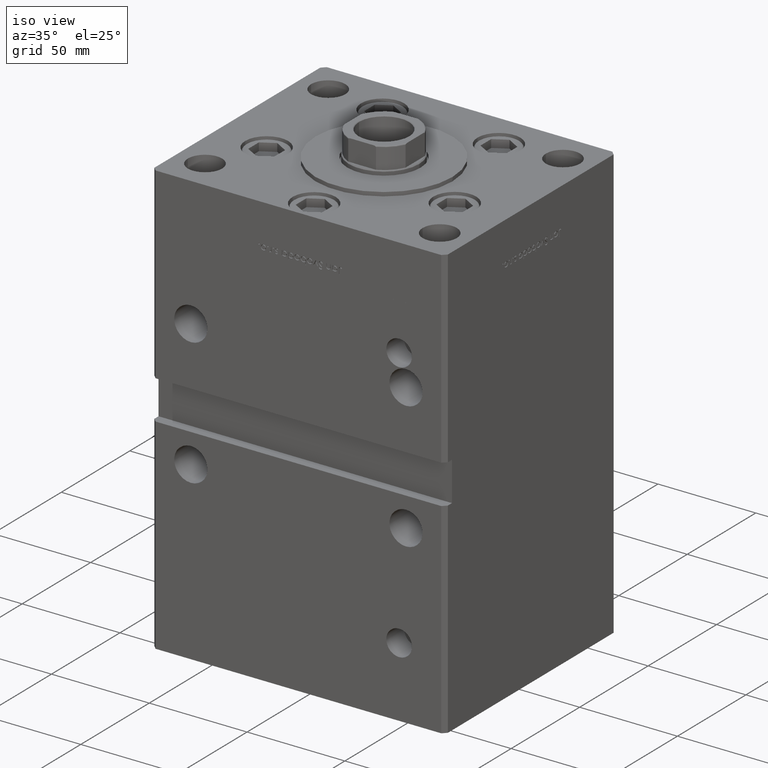
[diagram: clean part render]
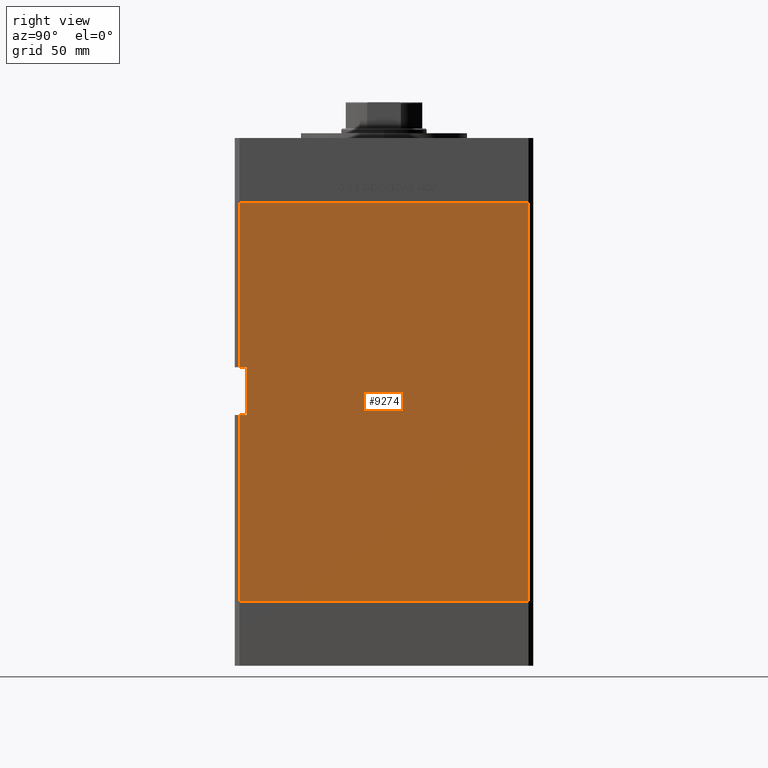
[diagram: tour spotlight — one face highlighted and labeled with its STEP entity id]
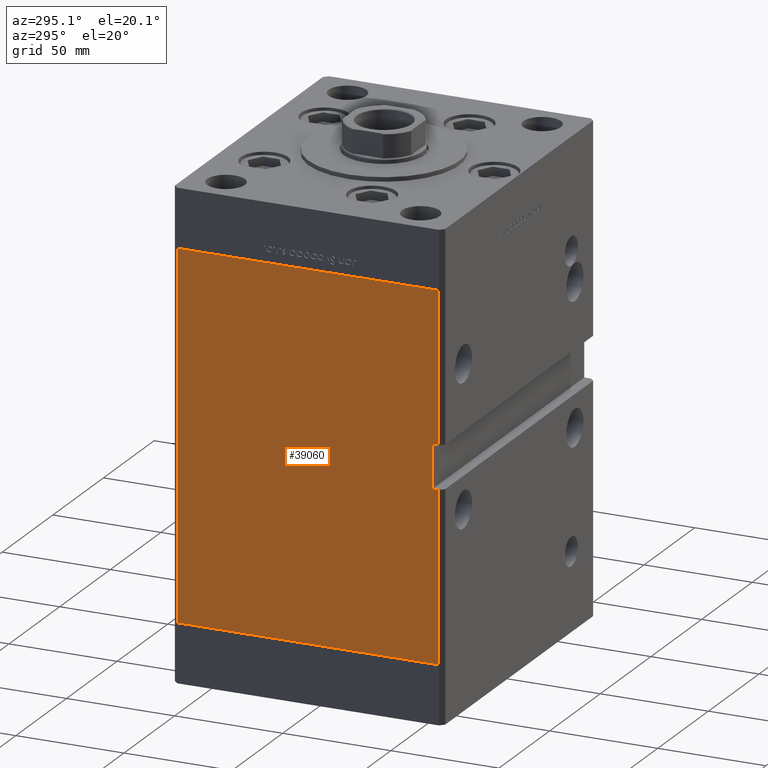
[diagram: tour spotlight — one face highlighted and labeled with its STEP entity id]
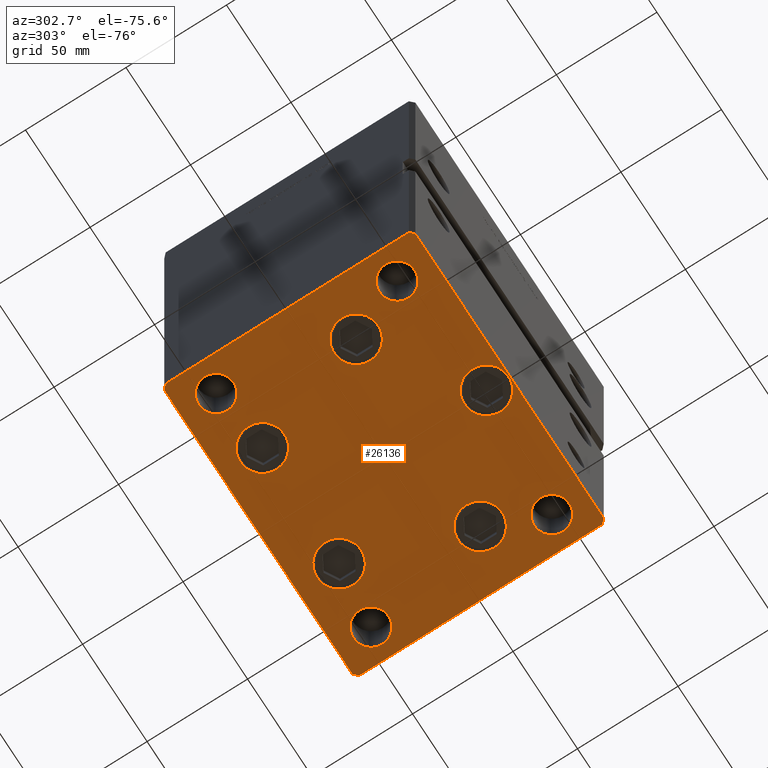
[diagram: tour spotlight — one face highlighted and labeled with its STEP entity id]
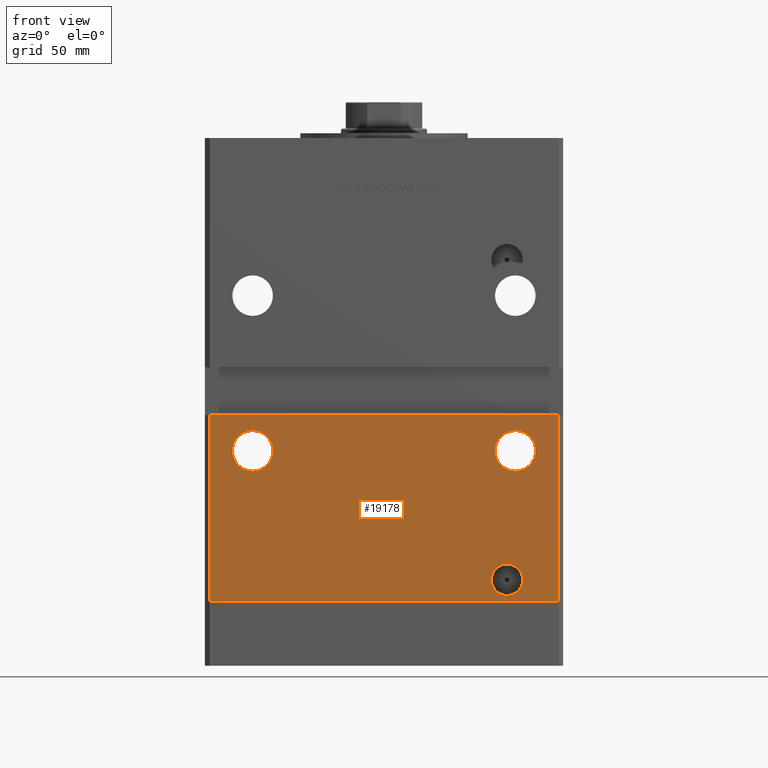
[diagram: tour spotlight — one face highlighted and labeled with its STEP entity id]
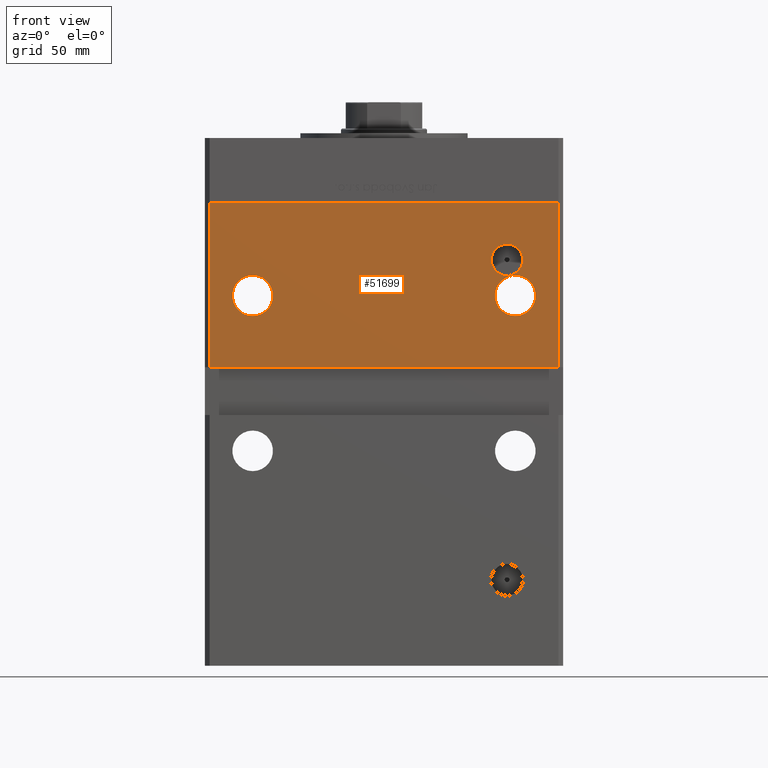
[diagram: tour spotlight — one face highlighted and labeled with its STEP entity id]
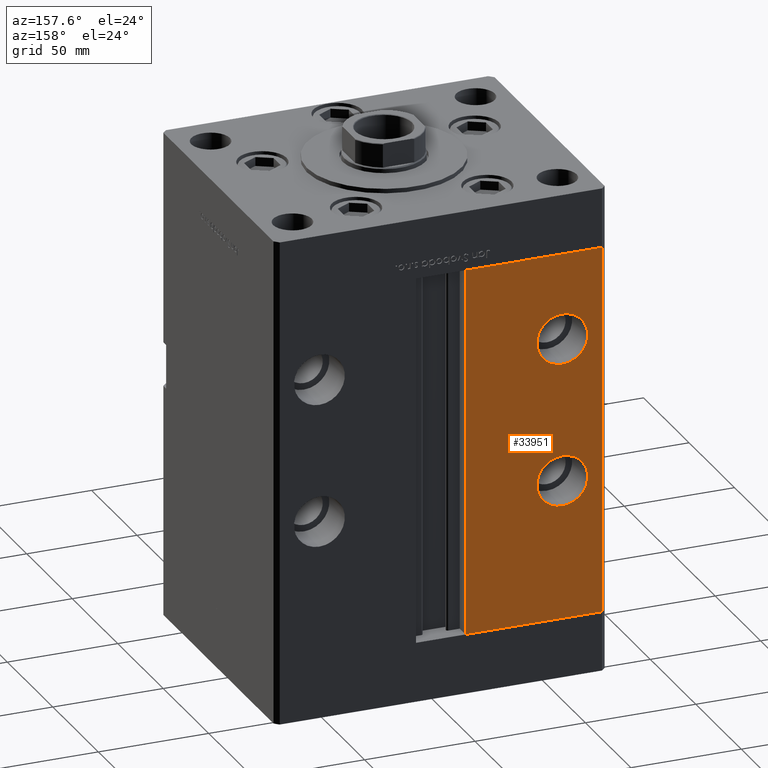
[diagram: tour spotlight — one face highlighted and labeled with its STEP entity id]
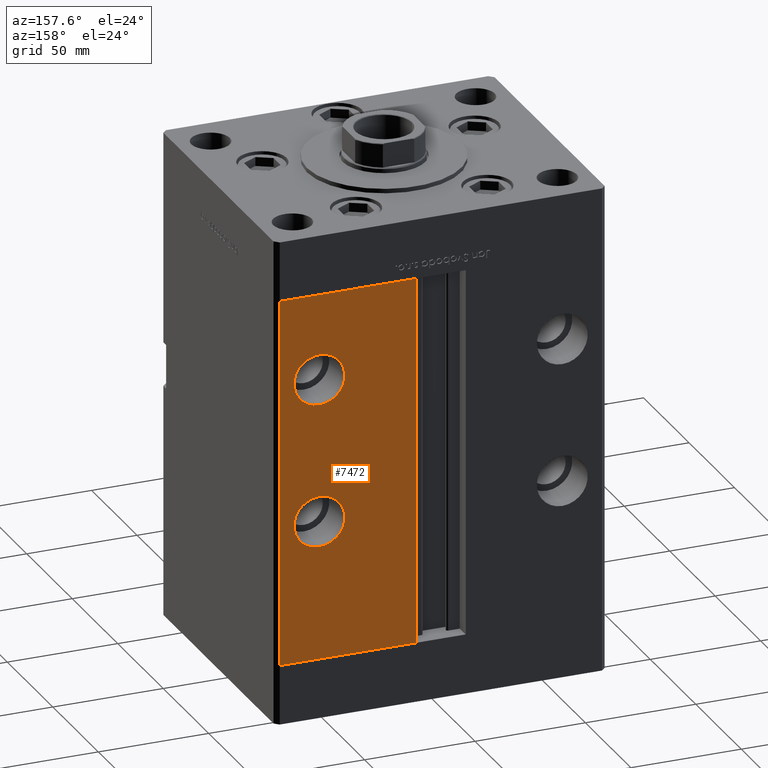
[diagram: tour spotlight — one face highlighted and labeled with its STEP entity id]
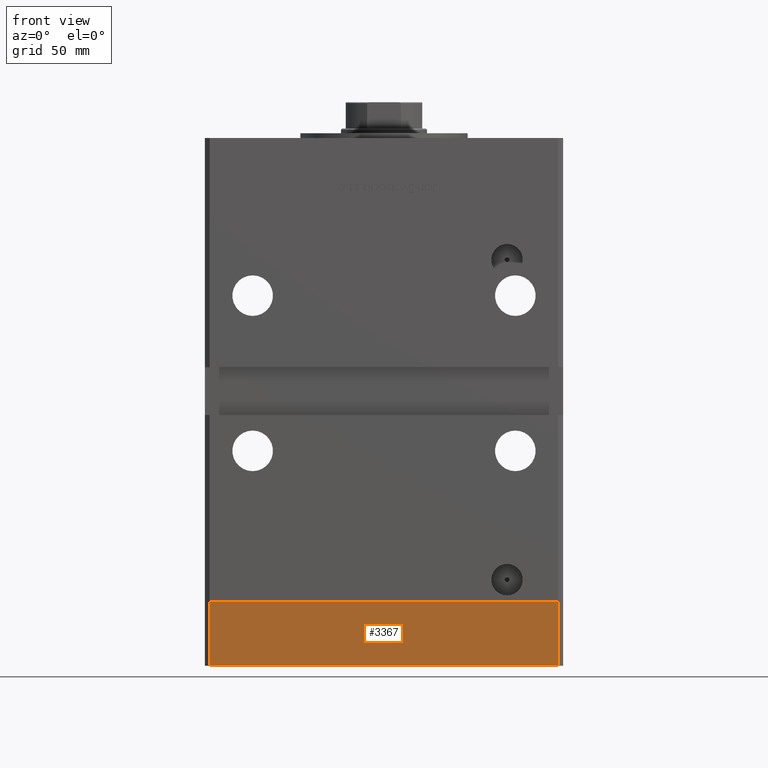
[diagram: tour spotlight — one face highlighted and labeled with its STEP entity id]
A machine part: a face-by-face anatomy tour. The part has 1214 B-rep faces; the first image is the clean iso view, then the 8 largest visible faces are spotlighted one at a time (largest first), each with its STEP entity span.

Face 1 — right view, entity #9274. In plain terms, the highlighted planar face has unit normal (1, -0, 0).
Definition (entity closure, byte-faithful):
#210 = FACE_OUTER_BOUND ( 'NONE', #44620, .T. ) ;
#794 = VERTEX_POINT ( 'NONE', #39736 ) ;
#1571 = ORIENTED_EDGE ( 'NONE', *, *, #41292, .F. ) ;
#2291 = DIRECTION ( 'NONE',  ( -0.000000000000000000, -0.000000000000000000, -1.000000000000000000 ) ) ;
#2454 = EDGE_CURVE ( 'NONE', #24093, #4211, #21984, .T. ) ;
#2697 = DIRECTION ( 'NONE',  ( -2.293849224432141861E-16, -1.000000000000000000, 0.000000000000000000 ) ) ;
#3054 = EDGE_CURVE ( 'NONE', #11242, #794, #26706, .T. ) ;
#4211 = VERTEX_POINT ( 'NONE', #13268 ) ;
#8675 = VECTOR ( 'NONE', #10753, 1000.000000000000000 ) ;
#9274 = ADVANCED_FACE ( 'NONE', ( #210 ), #50047, .T. ) ;
#9360 = VERTEX_POINT ( 'NONE', #29680 ) ;
#10005 = DIRECTION ( 'NONE',  ( -0.000000000000000000, -0.000000000000000000, -1.000000000000000000 ) ) ;
#10103 = CARTESIAN_POINT ( 'NONE',  ( 74.99999999999998579, -57.50000000000000000, 98.00000000000000000 ) ) ;
#10753 = DIRECTION ( 'NONE',  ( -2.293849224432141861E-16, -1.000000000000000000, 0.000000000000000000 ) ) ;
#11242 = VERTEX_POINT ( 'NONE', #20573 ) ;
#11946 = VECTOR ( 'NONE', #2291, 1000.000000000000000 ) ;
#12674 = ORIENTED_EDGE ( 'NONE', *, *, #3054, .T. ) ;
#13268 = CARTESIAN_POINT ( 'NONE',  ( 74.99999999999998579, -60.50000000000000000, 98.00000000000000000 ) ) ;
#14915 = CARTESIAN_POINT ( 'NONE',  ( 74.99999999999998579, -60.50000000000000000, 167.0000000000000000 ) ) ;
#16062 = VECTOR ( 'NONE', #2697, 1000.000000000000000 ) ;
#16962 = ORIENTED_EDGE ( 'NONE', *, *, #2454, .F. ) ;
#17036 = EDGE_CURVE ( 'NONE', #23140, #29959, #46834, .T. ) ;
#18312 = CARTESIAN_POINT ( 'NONE',  ( 74.99999999999998579, -60.50000000000000000, 167.0000000000000000 ) ) ;
#18777 = LINE ( 'NONE', #31117, #16062 ) ;
#18885 = VECTOR ( 'NONE', #45605, 1000.000000000000000 ) ;
#18951 = DIRECTION ( 'NONE',  ( -0.000000000000000000, -0.000000000000000000, -1.000000000000000000 ) ) ;
#20573 = CARTESIAN_POINT ( 'NONE',  ( 74.99999999999998579, -60.50000000000000000, 77.99999999999998579 ) ) ;
#20844 = DIRECTION ( 'NONE',  ( 2.293849224432142354E-16, 1.000000000000000000, 0.000000000000000000 ) ) ;
#20939 = EDGE_CURVE ( 'NONE', #9360, #11242, #37280, .T. ) ;
#21050 = VERTEX_POINT ( 'NONE', #38330 ) ;
#21322 = VECTOR ( 'NONE', #50413, 1000.000000000000000 ) ;
#21984 = LINE ( 'NONE', #29265, #21322 ) ;
#23140 = VERTEX_POINT ( 'NONE', #50591 ) ;
#24093 = VERTEX_POINT ( 'NONE', #27070 ) ;
#24872 = CARTESIAN_POINT ( 'NONE',  ( 75.00000000000001421, 60.50000000000000000, 167.0000000000000000 ) ) ;
#25365 = ORIENTED_EDGE ( 'NONE', *, *, #20939, .T. ) ;
#25792 = ORIENTED_EDGE ( 'NONE', *, *, #27372, .T. ) ;
#26706 = LINE ( 'NONE', #14915, #11946 ) ;
#27070 = CARTESIAN_POINT ( 'NONE',  ( 74.99999999999998579, -57.50000000000000000, 98.00000000000000000 ) ) ;
#27152 = LINE ( 'NONE', #18312, #48020 ) ;
#27372 = EDGE_CURVE ( 'NONE', #23140, #21050, #31384, .T. ) ;
#29104 = VECTOR ( 'NONE', #51906, 1000.000000000000000 ) ;
#29237 = CARTESIAN_POINT ( 'NONE',  ( 74.99999999999998579, -57.50000000000000000, 77.99999999999998579 ) ) ;
#29265 = CARTESIAN_POINT ( 'NONE',  ( 74.99999999999998579, -57.50000000000000000, 98.00000000000000000 ) ) ;
#29680 = CARTESIAN_POINT ( 'NONE',  ( 74.99999999999998579, -57.49999999999999289, 77.99999999999998579 ) ) ;
#29959 = VERTEX_POINT ( 'NONE', #50230 ) ;
#31117 = CARTESIAN_POINT ( 'NONE',  ( 75.00000000000001421, 60.50000000000000000, 0.000000000000000000 ) ) ;
#31384 = LINE ( 'NONE', #47479, #8675 ) ;
#31609 = ORIENTED_EDGE ( 'NONE', *, *, #17036, .F. ) ;
#33443 = DIRECTION ( 'NONE',  ( 1.000000000000000000, -2.293849224432142354E-16, 0.000000000000000000 ) ) ;
#36917 = ORIENTED_EDGE ( 'NONE', *, *, #49879, .T. ) ;
#37280 = LINE ( 'NONE', #29237, #18885 ) ;
#38330 = CARTESIAN_POINT ( 'NONE',  ( 74.99999999999998579, -60.50000000000000000, 167.0000000000000000 ) ) ;
#39601 = CARTESIAN_POINT ( 'NONE',  ( 75.00000000000001421, 60.50000000000000000, 167.0000000000000000 ) ) ;
#39736 = CARTESIAN_POINT ( 'NONE',  ( 74.99999999999998579, -60.50000000000000000, 0.000000000000000000 ) ) ;
#41292 = EDGE_CURVE ( 'NONE', #29959, #794, #18777, .T. ) ;
#41695 = AXIS2_PLACEMENT_3D ( 'NONE', #24872, #33443, #20844 ) ;
#44620 = EDGE_LOOP ( 'NONE', ( #25365, #12674, #1571, #31609, #25792, #36917, #16962, #44726 ) ) ;
#44726 = ORIENTED_EDGE ( 'NONE', *, *, #49260, .F. ) ;
#45605 = DIRECTION ( 'NONE',  ( -0.000000000000000000, -1.000000000000000000, -0.000000000000000000 ) ) ;
#46834 = LINE ( 'NONE', #39601, #49560 ) ;
#47479 = CARTESIAN_POINT ( 'NONE',  ( 75.00000000000001421, 60.50000000000000000, 167.0000000000000000 ) ) ;
#48020 = VECTOR ( 'NONE', #10005, 1000.000000000000000 ) ;
#49260 = EDGE_CURVE ( 'NONE', #9360, #24093, #51644, .T. ) ;
#49560 = VECTOR ( 'NONE', #18951, 1000.000000000000000 ) ;
#49879 = EDGE_CURVE ( 'NONE', #21050, #4211, #27152, .T. ) ;
#50047 = PLANE ( 'NONE',  #41695 ) ;
#50230 = CARTESIAN_POINT ( 'NONE',  ( 75.00000000000001421, 60.50000000000000000, 0.000000000000000000 ) ) ;
#50413 = DIRECTION ( 'NONE',  ( -0.000000000000000000, -1.000000000000000000, -0.000000000000000000 ) ) ;
#50591 = CARTESIAN_POINT ( 'NONE',  ( 75.00000000000001421, 60.50000000000000000, 167.0000000000000000 ) ) ;
#51644 = LINE ( 'NONE', #10103, #29104 ) ;
#51906 = DIRECTION ( 'NONE',  ( -0.000000000000000000, -0.000000000000000000, 1.000000000000000000 ) ) ;

Face 2 — auxiliary view, entity #39060. In plain terms, the highlighted planar face has unit normal (1, 0, 0).
Definition (entity closure, byte-faithful):
#20 = DIRECTION ( 'NONE',  ( -0.000000000000000000, -0.000000000000000000, -1.000000000000000000 ) ) ;
#341 = DIRECTION ( 'NONE',  ( -0.000000000000000000, -0.000000000000000000, -1.000000000000000000 ) ) ;
#494 = EDGE_CURVE ( 'NONE', #10567, #21825, #4901, .T. ) ;
#953 = DIRECTION ( 'NONE',  ( -0.000000000000000000, -1.000000000000000000, -0.000000000000000000 ) ) ;
#1091 = EDGE_CURVE ( 'NONE', #15606, #38290, #42241, .T. ) ;
#2047 = ORIENTED_EDGE ( 'NONE', *, *, #39984, .F. ) ;
#2274 = DIRECTION ( 'NONE',  ( -0.000000000000000000, -0.000000000000000000, -1.000000000000000000 ) ) ;
#4506 = CARTESIAN_POINT ( 'NONE',  ( -74.99999999999998579, -60.50000000000000000, 167.0000000000000000 ) ) ;
#4901 = LINE ( 'NONE', #33325, #38523 ) ;
#6014 = VERTEX_POINT ( 'NONE', #17514 ) ;
#8986 = EDGE_CURVE ( 'NONE', #16929, #38290, #12942, .T. ) ;
#10165 = DIRECTION ( 'NONE',  ( 1.000000000000000000, 2.293849224432142354E-16, -0.000000000000000000 ) ) ;
#10567 = VERTEX_POINT ( 'NONE', #44610 ) ;
#11784 = DIRECTION ( 'NONE',  ( -0.000000000000000000, -1.000000000000000000, -0.000000000000000000 ) ) ;
#12942 = LINE ( 'NONE', #41361, #20263 ) ;
#13554 = CARTESIAN_POINT ( 'NONE',  ( -74.99999999999998579, -57.50000000000000000, 98.00000000000000000 ) ) ;
#15606 = VERTEX_POINT ( 'NONE', #48550 ) ;
#16929 = VERTEX_POINT ( 'NONE', #4506 ) ;
#17514 = CARTESIAN_POINT ( 'NONE',  ( -75.00000000000001421, 60.50000000000000000, 167.0000000000000000 ) ) ;
#17614 = LINE ( 'NONE', #41486, #31712 ) ;
#18519 = EDGE_CURVE ( 'NONE', #15606, #21801, #21251, .T. ) ;
#19499 = EDGE_CURVE ( 'NONE', #21801, #25627, #42499, .T. ) ;
#20070 = VECTOR ( 'NONE', #20, 1000.000000000000000 ) ;
#20074 = ORIENTED_EDGE ( 'NONE', *, *, #8986, .F. ) ;
#20263 = VECTOR ( 'NONE', #341, 1000.000000000000000 ) ;
#21251 = LINE ( 'NONE', #37354, #26489 ) ;
#21715 = CARTESIAN_POINT ( 'NONE',  ( -74.99999999999998579, -60.50000000000000000, 0.000000000000000000 ) ) ;
#21801 = VERTEX_POINT ( 'NONE', #30829 ) ;
#21825 = VERTEX_POINT ( 'NONE', #21715 ) ;
#23753 = EDGE_LOOP ( 'NONE', ( #2047, #46880, #30599, #25367, #20074, #23755, #28201, #27306 ) ) ;
#23755 = ORIENTED_EDGE ( 'NONE', *, *, #49109, .F. ) ;
#23841 = VECTOR ( 'NONE', #2274, 1000.000000000000000 ) ;
#24428 = LINE ( 'NONE', #27669, #20070 ) ;
#25367 = ORIENTED_EDGE ( 'NONE', *, *, #1091, .T. ) ;
#25627 = VERTEX_POINT ( 'NONE', #48913 ) ;
#26489 = VECTOR ( 'NONE', #37095, 1000.000000000000000 ) ;
#27306 = ORIENTED_EDGE ( 'NONE', *, *, #494, .T. ) ;
#27519 = PLANE ( 'NONE',  #42533 ) ;
#27669 = CARTESIAN_POINT ( 'NONE',  ( -75.00000000000001421, 60.50000000000000000, 167.0000000000000000 ) ) ;
#28201 = ORIENTED_EDGE ( 'NONE', *, *, #34763, .T. ) ;
#30599 = ORIENTED_EDGE ( 'NONE', *, *, #18519, .F. ) ;
#30829 = CARTESIAN_POINT ( 'NONE',  ( -74.99999999999998579, -57.50000000000000000, 77.99999999999998579 ) ) ;
#31712 = VECTOR ( 'NONE', #38519, 1000.000000000000000 ) ;
#33325 = CARTESIAN_POINT ( 'NONE',  ( -75.00000000000001421, 60.50000000000000000, 0.000000000000000000 ) ) ;
#34763 = EDGE_CURVE ( 'NONE', #6014, #10567, #24428, .T. ) ;
#37095 = DIRECTION ( 'NONE',  ( 0.000000000000000000, 0.000000000000000000, -1.000000000000000000 ) ) ;
#37349 = DIRECTION ( 'NONE',  ( 2.293849224432141861E-16, -1.000000000000000000, 0.000000000000000000 ) ) ;
#37354 = CARTESIAN_POINT ( 'NONE',  ( -74.99999999999998579, -57.50000000000000000, 98.00000000000000000 ) ) ;
#38290 = VERTEX_POINT ( 'NONE', #41674 ) ;
#38519 = DIRECTION ( 'NONE',  ( 2.293849224432141861E-16, -1.000000000000000000, 0.000000000000000000 ) ) ;
#38523 = VECTOR ( 'NONE', #37349, 1000.000000000000000 ) ;
#38752 = CARTESIAN_POINT ( 'NONE',  ( -74.99999999999998579, -60.50000000000000000, 167.0000000000000000 ) ) ;
#39015 = LINE ( 'NONE', #38752, #23841 ) ;
#39060 = ADVANCED_FACE ( 'NONE', ( #50640 ), #27519, .F. ) ;
#39984 = EDGE_CURVE ( 'NONE', #25627, #21825, #39015, .T. ) ;
#41361 = CARTESIAN_POINT ( 'NONE',  ( -74.99999999999998579, -60.50000000000000000, 167.0000000000000000 ) ) ;
#41486 = CARTESIAN_POINT ( 'NONE',  ( -75.00000000000001421, 60.50000000000000000, 167.0000000000000000 ) ) ;
#41674 = CARTESIAN_POINT ( 'NONE',  ( -74.99999999999998579, -60.50000000000000000, 98.00000000000000000 ) ) ;
#41980 = CARTESIAN_POINT ( 'NONE',  ( -74.99999999999998579, -57.50000000000000000, 77.99999999999998579 ) ) ;
#42241 = LINE ( 'NONE', #13554, #50534 ) ;
#42499 = LINE ( 'NONE', #41980, #47090 ) ;
#42533 = AXIS2_PLACEMENT_3D ( 'NONE', #52174, #10165, #42598 ) ;
#42598 = DIRECTION ( 'NONE',  ( -2.293849224432142354E-16, 1.000000000000000000, 0.000000000000000000 ) ) ;
#44610 = CARTESIAN_POINT ( 'NONE',  ( -75.00000000000001421, 60.50000000000000000, 0.000000000000000000 ) ) ;
#46880 = ORIENTED_EDGE ( 'NONE', *, *, #19499, .F. ) ;
#47090 = VECTOR ( 'NONE', #953, 1000.000000000000000 ) ;
#48550 = CARTESIAN_POINT ( 'NONE',  ( -74.99999999999998579, -57.50000000000000000, 98.00000000000000000 ) ) ;
#48913 = CARTESIAN_POINT ( 'NONE',  ( -74.99999999999998579, -60.50000000000000000, 77.99999999999998579 ) ) ;
#49109 = EDGE_CURVE ( 'NONE', #6014, #16929, #17614, .T. ) ;
#50534 = VECTOR ( 'NONE', #11784, 1000.000000000000000 ) ;
#50640 = FACE_OUTER_BOUND ( 'NONE', #23753, .T. ) ;
#52174 = CARTESIAN_POINT ( 'NONE',  ( -75.00000000000001421, 60.50000000000000000, 167.0000000000000000 ) ) ;

Face 3 — auxiliary view, entity #26136. In plain terms, the highlighted planar face has unit normal (0, 0, -1).
Definition (entity closure, byte-faithful):
#83 = VERTEX_POINT ( 'NONE', #30226 ) ;
#253 = VERTEX_POINT ( 'NONE', #4706 ) ;
#288 = CARTESIAN_POINT ( 'NONE',  ( -59.08326112068522207, -17.00000000000000711, 0.000000000000000000 ) ) ;
#726 = EDGE_LOOP ( 'NONE', ( #33913, #19870, #46759, #28949, #18670, #4163, #25027, #11746 ) ) ;
#1891 = DIRECTION ( 'NONE',  ( 1.000000000000000000, 0.000000000000000000, 0.000000000000000000 ) ) ;
#2105 = CARTESIAN_POINT ( 'NONE',  ( -59.99999999999999289, -45.00000000000000000, 0.000000000000000000 ) ) ;
#2126 = CARTESIAN_POINT ( 'NONE',  ( -37.08326112068521496, -17.00000000000000711, 0.000000000000000000 ) ) ;
#2160 = CARTESIAN_POINT ( 'NONE',  ( 73.00000000000001421, -62.50000000000001421, 0.000000000000000000 ) ) ;
#2484 = DIRECTION ( 'NONE',  ( 1.000000000000000000, 0.000000000000000000, 0.000000000000000000 ) ) ;
#2973 = DIRECTION ( 'NONE',  ( 1.000000000000000000, 0.000000000000000000, 0.000000000000000000 ) ) ;
#2988 = EDGE_LOOP ( 'NONE', ( #30929, #24232 ) ) ;
#3396 = CIRCLE ( 'NONE', #33343, 11.00000000000000000 ) ;
#4163 = ORIENTED_EDGE ( 'NONE', *, *, #34935, .T. ) ;
#4287 = EDGE_CURVE ( 'NONE', #15860, #17719, #32524, .T. ) ;
#4569 = LINE ( 'NONE', #12613, #51715 ) ;
#4706 = CARTESIAN_POINT ( 'NONE',  ( 73.00000000000001421, -62.50000000000001421, 0.000000000000000000 ) ) ;
#4777 = DIRECTION ( 'NONE',  ( -0.000000000000000000, 0.000000000000000000, 1.000000000000000000 ) ) ;
#5392 = EDGE_LOOP ( 'NONE', ( #52323, #23491 ) ) ;
#5413 = VERTEX_POINT ( 'NONE', #44567 ) ;
#5820 = CIRCLE ( 'NONE', #50365, 8.750000000000000000 ) ;
#6052 = DIRECTION ( 'NONE',  ( 0.000000000000000000, -0.000000000000000000, -1.000000000000000000 ) ) ;
#6199 = DIRECTION ( 'NONE',  ( 0.000000000000000000, -0.000000000000000000, -1.000000000000000000 ) ) ;
#6445 = CARTESIAN_POINT ( 'NONE',  ( 60.00000000000000000, 44.99999999999999289, 0.000000000000000000 ) ) ;
#6632 = CIRCLE ( 'NONE', #24584, 11.00000000000000355 ) ;
#6656 = DIRECTION ( 'NONE',  ( 0.000000000000000000, -0.000000000000000000, -1.000000000000000000 ) ) ;
#6774 = FACE_BOUND ( 'NONE', #51299, .T. ) ;
#7050 = PLANE ( 'NONE',  #33457 ) ;
#7171 = LINE ( 'NONE', #16276, #36652 ) ;
#7217 = CARTESIAN_POINT ( 'NONE',  ( -68.75000000000000000, 45.00000000000000000, 0.000000000000000000 ) ) ;
#7485 = VERTEX_POINT ( 'NONE', #30198 ) ;
#7762 = CIRCLE ( 'NONE', #52257, 10.99999999999999645 ) ;
#7924 = CIRCLE ( 'NONE', #18182, 11.00000000000000000 ) ;
#8330 = VECTOR ( 'NONE', #32243, 1000.000000000000114 ) ;
#8639 = DIRECTION ( 'NONE',  ( 1.000000000000000000, 0.000000000000000000, 0.000000000000000000 ) ) ;
#8811 = DIRECTION ( 'NONE',  ( 1.000000000000000000, 0.000000000000000000, 0.000000000000000000 ) ) ;
#8894 = VECTOR ( 'NONE', #18781, 1000.000000000000000 ) ;
#9236 = CARTESIAN_POINT ( 'NONE',  ( -68.74999999999998579, -45.00000000000000000, 0.000000000000000000 ) ) ;
#9256 = VERTEX_POINT ( 'NONE', #7217 ) ;
#9650 = DIRECTION ( 'NONE',  ( 1.000000000000000000, 0.000000000000000000, 0.000000000000000000 ) ) ;
#9884 = CARTESIAN_POINT ( 'NONE',  ( 6.245698675651500444E-15, -51.00000000000000000, 0.000000000000000000 ) ) ;
#10152 = EDGE_LOOP ( 'NONE', ( #12411, #13063 ) ) ;
#10236 = AXIS2_PLACEMENT_3D ( 'NONE', #51983, #11256, #43970 ) ;
#10932 = CIRCLE ( 'NONE', #24616, 8.750000000000007105 ) ;
#10966 = DIRECTION ( 'NONE',  ( 0.000000000000000000, -0.000000000000000000, -1.000000000000000000 ) ) ;
#11072 = FACE_BOUND ( 'NONE', #21735, .T. ) ;
#11115 = ORIENTED_EDGE ( 'NONE', *, *, #16197, .T. ) ;
#11256 = DIRECTION ( 'NONE',  ( 0.000000000000000000, -0.000000000000000000, -1.000000000000000000 ) ) ;
#11266 = CARTESIAN_POINT ( 'NONE',  ( 48.08326112068522207, -16.99999999999999645, 0.000000000000000000 ) ) ;
#11349 = FACE_BOUND ( 'NONE', #5392, .T. ) ;
#11746 = ORIENTED_EDGE ( 'NONE', *, *, #12182, .T. ) ;
#12182 = EDGE_CURVE ( 'NONE', #12596, #48355, #22339, .T. ) ;
#12352 = EDGE_LOOP ( 'NONE', ( #30534, #36221 ) ) ;
#12411 = ORIENTED_EDGE ( 'NONE', *, *, #15733, .T. ) ;
#12414 = CIRCLE ( 'NONE', #43265, 11.00000000000000000 ) ;
#12596 = VERTEX_POINT ( 'NONE', #46529 ) ;
#12613 = CARTESIAN_POINT ( 'NONE',  ( 72.99999999999992895, 62.50000000000001421, 0.000000000000000000 ) ) ;
#12695 = CARTESIAN_POINT ( 'NONE',  ( 74.99999999999992895, 60.50000000000002842, 0.000000000000000000 ) ) ;
#12770 = CARTESIAN_POINT ( 'NONE',  ( -18.73102073172060500, 41.43749999999998579, 0.000000000000000000 ) ) ;
#12781 = EDGE_CURVE ( 'NONE', #28833, #33716, #23797, .T. ) ;
#13063 = ORIENTED_EDGE ( 'NONE', *, *, #37667, .T. ) ;
#13271 = VERTEX_POINT ( 'NONE', #12770 ) ;
#13606 = CIRCLE ( 'NONE', #51250, 11.00000000000000000 ) ;
#13613 = CARTESIAN_POINT ( 'NONE',  ( -48.08326112068522207, -17.00000000000000711, 0.000000000000000000 ) ) ;
#13731 = VERTEX_POINT ( 'NONE', #19376 ) ;
#13811 = CARTESIAN_POINT ( 'NONE',  ( -60.00000000000000000, 45.00000000000000000, 0.000000000000000000 ) ) ;
#14581 = CARTESIAN_POINT ( 'NONE',  ( -75.00000000000001421, 60.49999999999997158, 0.000000000000000000 ) ) ;
#15227 = VECTOR ( 'NONE', #19127, 1000.000000000000000 ) ;
#15733 = EDGE_CURVE ( 'NONE', #18745, #13731, #13606, .T. ) ;
#15860 = VERTEX_POINT ( 'NONE', #2126 ) ;
#16197 = EDGE_CURVE ( 'NONE', #51434, #42599, #40182, .T. ) ;
#16233 = LINE ( 'NONE', #48924, #34464 ) ;
#16276 = CARTESIAN_POINT ( 'NONE',  ( 75.00000000000001421, -60.50000000000000711, 0.000000000000000000 ) ) ;
#16359 = CARTESIAN_POINT ( 'NONE',  ( 51.24999999999999289, 44.99999999999999289, 0.000000000000000000 ) ) ;
#16644 = CARTESIAN_POINT ( 'NONE',  ( 72.99999999999992895, 62.50000000000001421, 0.000000000000000000 ) ) ;
#16669 = DIRECTION ( 'NONE',  ( 1.000000000000000000, 9.505334114941407284E-17, 0.000000000000000000 ) ) ;
#17248 = LINE ( 'NONE', #12695, #34814 ) ;
#17429 = DIRECTION ( 'NONE',  ( -1.000000000000000000, -1.901066822988282689E-16, 0.000000000000000000 ) ) ;
#17539 = DIRECTION ( 'NONE',  ( 0.7071067811865451302, -0.7071067811865500152, 0.000000000000000000 ) ) ;
#17719 = VERTEX_POINT ( 'NONE', #288 ) ;
#17789 = VERTEX_POINT ( 'NONE', #16644 ) ;
#17811 = CARTESIAN_POINT ( 'NONE',  ( 51.24999999999999289, -44.99999999999999289, 0.000000000000000000 ) ) ;
#17921 = AXIS2_PLACEMENT_3D ( 'NONE', #23161, #27186, #47563 ) ;
#18052 = EDGE_CURVE ( 'NONE', #5413, #48481, #28244, .T. ) ;
#18182 = AXIS2_PLACEMENT_3D ( 'NONE', #38353, #22788, #46413 ) ;
#18187 = ORIENTED_EDGE ( 'NONE', *, *, #27562, .T. ) ;
#18218 = EDGE_LOOP ( 'NONE', ( #43397, #45512 ) ) ;
#18670 = ORIENTED_EDGE ( 'NONE', *, *, #39333, .T. ) ;
#18679 = VERTEX_POINT ( 'NONE', #48313 ) ;
#18745 = VERTEX_POINT ( 'NONE', #24688 ) ;
#18781 = DIRECTION ( 'NONE',  ( 0.7071067811865463515, 0.7071067811865487940, 0.000000000000000000 ) ) ;
#19001 = CIRCLE ( 'NONE', #30135, 8.750000000000007105 ) ;
#19127 = DIRECTION ( 'NONE',  ( 0.000000000000000000, -1.000000000000000000, 0.000000000000000000 ) ) ;
#19376 = CARTESIAN_POINT ( 'NONE',  ( 11.00000000000000711, -51.00000000000000000, 0.000000000000000000 ) ) ;
#19614 = AXIS2_PLACEMENT_3D ( 'NONE', #29183, #4777, #37754 ) ;
#19693 = CARTESIAN_POINT ( 'NONE',  ( -73.00000000000001421, -62.50000000000002842, 0.000000000000000000 ) ) ;
#19870 = ORIENTED_EDGE ( 'NONE', *, *, #50041, .T. ) ;
#20036 = CARTESIAN_POINT ( 'NONE',  ( 37.08326112068521496, -16.99999999999999645, 0.000000000000000000 ) ) ;
#20680 = CARTESIAN_POINT ( 'NONE',  ( 60.00000000000000000, 44.99999999999999289, 0.000000000000000000 ) ) ;
#21455 = DIRECTION ( 'NONE',  ( -0.000000000000000000, 0.000000000000000000, 1.000000000000000000 ) ) ;
#21735 = EDGE_LOOP ( 'NONE', ( #50832, #33760 ) ) ;
#22339 = LINE ( 'NONE', #14581, #15227 ) ;
#22788 = DIRECTION ( 'NONE',  ( 0.000000000000000000, -0.000000000000000000, -1.000000000000000000 ) ) ;
#23161 = CARTESIAN_POINT ( 'NONE',  ( -59.99999999999999289, -45.00000000000000000, 0.000000000000000000 ) ) ;
#23203 = CARTESIAN_POINT ( 'NONE',  ( 29.73102073172059789, 41.43749999999999289, 0.000000000000000000 ) ) ;
#23445 = VERTEX_POINT ( 'NONE', #29112 ) ;
#23491 = ORIENTED_EDGE ( 'NONE', *, *, #44690, .F. ) ;
#23607 = VERTEX_POINT ( 'NONE', #19693 ) ;
#23697 = EDGE_CURVE ( 'NONE', #41405, #23445, #30098, .T. ) ;
#23797 = CIRCLE ( 'NONE', #28089, 11.00000000000000355 ) ;
#24228 = CARTESIAN_POINT ( 'NONE',  ( -40.73102073172060500, 41.43749999999998579, 0.000000000000000000 ) ) ;
#24232 = ORIENTED_EDGE ( 'NONE', *, *, #32598, .F. ) ;
#24256 = DIRECTION ( 'NONE',  ( 0.000000000000000000, -0.000000000000000000, -1.000000000000000000 ) ) ;
#24371 = ORIENTED_EDGE ( 'NONE', *, *, #28473, .T. ) ;
#24584 = AXIS2_PLACEMENT_3D ( 'NONE', #45630, #34077, #8639 ) ;
#24616 = AXIS2_PLACEMENT_3D ( 'NONE', #20680, #21455, #37299 ) ;
#24654 = EDGE_LOOP ( 'NONE', ( #18187, #11115 ) ) ;
#24688 = CARTESIAN_POINT ( 'NONE',  ( -10.99999999999999289, -51.00000000000000000, 0.000000000000000000 ) ) ;
#24886 = VECTOR ( 'NONE', #16669, 1000.000000000000000 ) ;
#25027 = ORIENTED_EDGE ( 'NONE', *, *, #41108, .T. ) ;
#26122 = DIRECTION ( 'NONE',  ( 1.000000000000000000, 0.000000000000000000, 0.000000000000000000 ) ) ;
#26136 = ADVANCED_FACE ( 'NONE', ( #52079, #35734, #6774, #30913, #11072, #48329, #27421, #11349, #27698, #47271 ), #7050, .T. ) ;
#26217 = DIRECTION ( 'NONE',  ( 0.000000000000000000, -0.000000000000000000, -1.000000000000000000 ) ) ;
#26778 = DIRECTION ( 'NONE',  ( 1.000000000000000000, 0.000000000000000000, 0.000000000000000000 ) ) ;
#26894 = DIRECTION ( 'NONE',  ( -0.000000000000000000, 0.000000000000000000, 1.000000000000000000 ) ) ;
#27186 = DIRECTION ( 'NONE',  ( 0.000000000000000000, -0.000000000000000000, -1.000000000000000000 ) ) ;
#27421 = FACE_BOUND ( 'NONE', #52640, .T. ) ;
#27562 = EDGE_CURVE ( 'NONE', #42599, #51434, #52332, .T. ) ;
#27621 = DIRECTION ( 'NONE',  ( 0.000000000000000000, -0.000000000000000000, -1.000000000000000000 ) ) ;
#27698 = FACE_OUTER_BOUND ( 'NONE', #726, .T. ) ;
#27848 = VERTEX_POINT ( 'NONE', #24228 ) ;
#28089 = AXIS2_PLACEMENT_3D ( 'NONE', #11266, #27621, #52537 ) ;
#28244 = CIRCLE ( 'NONE', #10236, 8.750000000000007105 ) ;
#28473 = EDGE_CURVE ( 'NONE', #48481, #5413, #19001, .T. ) ;
#28833 = VERTEX_POINT ( 'NONE', #20036 ) ;
#28949 = ORIENTED_EDGE ( 'NONE', *, *, #42549, .T. ) ;
#29112 = CARTESIAN_POINT ( 'NONE',  ( 18.73102073172060500, 41.43749999999999289, 0.000000000000000000 ) ) ;
#29183 = CARTESIAN_POINT ( 'NONE',  ( -60.00000000000000000, 45.00000000000000000, 0.000000000000000000 ) ) ;
#29210 = AXIS2_PLACEMENT_3D ( 'NONE', #2105, #6656, #26778 ) ;
#29298 = EDGE_CURVE ( 'NONE', #13271, #27848, #7924, .T. ) ;
#29511 = AXIS2_PLACEMENT_3D ( 'NONE', #13613, #45533, #8811 ) ;
#29917 = EDGE_CURVE ( 'NONE', #48355, #23607, #16233, .T. ) ;
#30098 = CIRCLE ( 'NONE', #36948, 10.99999999999999645 ) ;
#30135 = AXIS2_PLACEMENT_3D ( 'NONE', #47428, #10966, #35630 ) ;
#30198 = CARTESIAN_POINT ( 'NONE',  ( 74.99999999999992895, 60.50000000000002842, 0.000000000000000000 ) ) ;
#30226 = CARTESIAN_POINT ( 'NONE',  ( -73.00000000000001421, 62.49999999999998579, 0.000000000000000000 ) ) ;
#30309 = DIRECTION ( 'NONE',  ( -0.000000000000000000, 0.000000000000000000, 1.000000000000000000 ) ) ;
#30382 = CARTESIAN_POINT ( 'NONE',  ( -51.25000000000000000, 45.00000000000000000, 0.000000000000000000 ) ) ;
#30518 = DIRECTION ( 'NONE',  ( 1.000000000000000000, 0.000000000000000000, 0.000000000000000000 ) ) ;
#30534 = ORIENTED_EDGE ( 'NONE', *, *, #47717, .T. ) ;
#30913 = FACE_BOUND ( 'NONE', #10152, .T. ) ;
#30929 = ORIENTED_EDGE ( 'NONE', *, *, #43059, .F. ) ;
#30959 = DIRECTION ( 'NONE',  ( -0.000000000000000000, 0.000000000000000000, 1.000000000000000000 ) ) ;
#31462 = CARTESIAN_POINT ( 'NONE',  ( -48.08326112068522207, -17.00000000000000711, 0.000000000000000000 ) ) ;
#31841 = DIRECTION ( 'NONE',  ( -6.881547673296424104E-16, 1.000000000000000000, 0.000000000000000000 ) ) ;
#32243 = DIRECTION ( 'NONE',  ( -0.7071067811865451302, -0.7071067811865500152, 0.000000000000000000 ) ) ;
#32524 = CIRCLE ( 'NONE', #46216, 11.00000000000000355 ) ;
#32598 = EDGE_CURVE ( 'NONE', #51108, #18679, #37941, .T. ) ;
#32764 = LINE ( 'NONE', #52616, #8330 ) ;
#33180 = VERTEX_POINT ( 'NONE', #30382 ) ;
#33343 = AXIS2_PLACEMENT_3D ( 'NONE', #48022, #6199, #2973 ) ;
#33457 = AXIS2_PLACEMENT_3D ( 'NONE', #43250, #26894, #2484 ) ;
#33596 = EDGE_CURVE ( 'NONE', #253, #37660, #34353, .T. ) ;
#33716 = VERTEX_POINT ( 'NONE', #43358 ) ;
#33760 = ORIENTED_EDGE ( 'NONE', *, *, #4287, .T. ) ;
#33861 = DIRECTION ( 'NONE',  ( -0.7071067811865500152, 0.7071067811865451302, 0.000000000000000000 ) ) ;
#33913 = ORIENTED_EDGE ( 'NONE', *, *, #29917, .T. ) ;
#34077 = DIRECTION ( 'NONE',  ( 0.000000000000000000, -0.000000000000000000, -1.000000000000000000 ) ) ;
#34284 = CARTESIAN_POINT ( 'NONE',  ( 75.00000000000001421, -60.50000000000000711, 0.000000000000000000 ) ) ;
#34353 = LINE ( 'NONE', #2160, #8894 ) ;
#34464 = VECTOR ( 'NONE', #17539, 1000.000000000000114 ) ;
#34814 = VECTOR ( 'NONE', #33861, 1000.000000000000114 ) ;
#34935 = EDGE_CURVE ( 'NONE', #17789, #83, #4569, .T. ) ;
#35035 = CIRCLE ( 'NONE', #19614, 8.750000000000000000 ) ;
#35385 = AXIS2_PLACEMENT_3D ( 'NONE', #6445, #30309, #1891 ) ;
#35630 = DIRECTION ( 'NONE',  ( 1.000000000000000000, 0.000000000000000000, 0.000000000000000000 ) ) ;
#35734 = FACE_BOUND ( 'NONE', #18218, .T. ) ;
#35758 = DIRECTION ( 'NONE',  ( 1.000000000000000000, 0.000000000000000000, 0.000000000000000000 ) ) ;
#36056 = EDGE_CURVE ( 'NONE', #17719, #15860, #37208, .T. ) ;
#36221 = ORIENTED_EDGE ( 'NONE', *, *, #29298, .T. ) ;
#36652 = VECTOR ( 'NONE', #31841, 1000.000000000000000 ) ;
#36948 = AXIS2_PLACEMENT_3D ( 'NONE', #40609, #24256, #45140 ) ;
#37208 = CIRCLE ( 'NONE', #29511, 11.00000000000000355 ) ;
#37299 = DIRECTION ( 'NONE',  ( 1.000000000000000000, 0.000000000000000000, 0.000000000000000000 ) ) ;
#37534 = ORIENTED_EDGE ( 'NONE', *, *, #18052, .T. ) ;
#37660 = VERTEX_POINT ( 'NONE', #34284 ) ;
#37667 = EDGE_CURVE ( 'NONE', #13731, #18745, #12414, .T. ) ;
#37754 = DIRECTION ( 'NONE',  ( 1.000000000000000000, 0.000000000000000000, 0.000000000000000000 ) ) ;
#37941 = CIRCLE ( 'NONE', #35385, 8.750000000000007105 ) ;
#38353 = CARTESIAN_POINT ( 'NONE',  ( -29.73102073172060500, 41.43749999999998579, 0.000000000000000000 ) ) ;
#38588 = CARTESIAN_POINT ( 'NONE',  ( 6.245698675651500444E-15, -51.00000000000000000, 0.000000000000000000 ) ) ;
#39309 = CARTESIAN_POINT ( 'NONE',  ( -75.00000000000001421, -60.50000000000001421, 0.000000000000000000 ) ) ;
#39312 = ORIENTED_EDGE ( 'NONE', *, *, #12781, .T. ) ;
#39333 = EDGE_CURVE ( 'NONE', #7485, #17789, #17248, .T. ) ;
#40182 = CIRCLE ( 'NONE', #17921, 8.750000000000000000 ) ;
#40609 = CARTESIAN_POINT ( 'NONE',  ( 29.73102073172059789, 41.43749999999999289, 0.000000000000000000 ) ) ;
#41108 = EDGE_CURVE ( 'NONE', #83, #12596, #32764, .T. ) ;
#41192 = CARTESIAN_POINT ( 'NONE',  ( -51.24999999999999289, -45.00000000000000000, 0.000000000000000000 ) ) ;
#41222 = EDGE_CURVE ( 'NONE', #33716, #28833, #6632, .T. ) ;
#41405 = VERTEX_POINT ( 'NONE', #43998 ) ;
#42549 = EDGE_CURVE ( 'NONE', #37660, #7485, #7171, .T. ) ;
#42599 = VERTEX_POINT ( 'NONE', #41192 ) ;
#43059 = EDGE_CURVE ( 'NONE', #18679, #51108, #10932, .T. ) ;
#43250 = CARTESIAN_POINT ( 'NONE',  ( 0.000000000000000000, 0.000000000000000000, 0.000000000000000000 ) ) ;
#43265 = AXIS2_PLACEMENT_3D ( 'NONE', #9884, #26217, #30518 ) ;
#43358 = CARTESIAN_POINT ( 'NONE',  ( 59.08326112068522207, -16.99999999999999645, 0.000000000000000000 ) ) ;
#43397 = ORIENTED_EDGE ( 'NONE', *, *, #50438, .T. ) ;
#43588 = DIRECTION ( 'NONE',  ( 1.000000000000000000, 0.000000000000000000, 0.000000000000000000 ) ) ;
#43810 = DIRECTION ( 'NONE',  ( 0.000000000000000000, -0.000000000000000000, -1.000000000000000000 ) ) ;
#43970 = DIRECTION ( 'NONE',  ( 1.000000000000000000, 0.000000000000000000, 0.000000000000000000 ) ) ;
#43998 = CARTESIAN_POINT ( 'NONE',  ( 40.73102073172059079, 41.43749999999999289, 0.000000000000000000 ) ) ;
#44567 = CARTESIAN_POINT ( 'NONE',  ( 68.75000000000000000, -44.99999999999999289, 0.000000000000000000 ) ) ;
#44690 = EDGE_CURVE ( 'NONE', #9256, #33180, #5820, .T. ) ;
#45140 = DIRECTION ( 'NONE',  ( 1.000000000000000000, 0.000000000000000000, 0.000000000000000000 ) ) ;
#45512 = ORIENTED_EDGE ( 'NONE', *, *, #23697, .T. ) ;
#45533 = DIRECTION ( 'NONE',  ( 0.000000000000000000, -0.000000000000000000, -1.000000000000000000 ) ) ;
#45630 = CARTESIAN_POINT ( 'NONE',  ( 48.08326112068522207, -16.99999999999999645, 0.000000000000000000 ) ) ;
#46216 = AXIS2_PLACEMENT_3D ( 'NONE', #31462, #43810, #35758 ) ;
#46238 = EDGE_CURVE ( 'NONE', #33180, #9256, #35035, .T. ) ;
#46413 = DIRECTION ( 'NONE',  ( 1.000000000000000000, 0.000000000000000000, 0.000000000000000000 ) ) ;
#46529 = CARTESIAN_POINT ( 'NONE',  ( -75.00000000000001421, 60.49999999999997158, 0.000000000000000000 ) ) ;
#46634 = DIRECTION ( 'NONE',  ( 0.000000000000000000, -0.000000000000000000, -1.000000000000000000 ) ) ;
#46759 = ORIENTED_EDGE ( 'NONE', *, *, #33596, .T. ) ;
#47271 = FACE_BOUND ( 'NONE', #24654, .T. ) ;
#47428 = CARTESIAN_POINT ( 'NONE',  ( 60.00000000000000000, -44.99999999999999289, 0.000000000000000000 ) ) ;
#47563 = DIRECTION ( 'NONE',  ( 1.000000000000000000, 0.000000000000000000, 0.000000000000000000 ) ) ;
#47717 = EDGE_CURVE ( 'NONE', #27848, #13271, #3396, .T. ) ;
#48022 = CARTESIAN_POINT ( 'NONE',  ( -29.73102073172060500, 41.43749999999998579, 0.000000000000000000 ) ) ;
#48313 = CARTESIAN_POINT ( 'NONE',  ( 68.75000000000000000, 44.99999999999999289, 0.000000000000000000 ) ) ;
#48329 = FACE_BOUND ( 'NONE', #2988, .T. ) ;
#48355 = VERTEX_POINT ( 'NONE', #39309 ) ;
#48481 = VERTEX_POINT ( 'NONE', #17811 ) ;
#48924 = CARTESIAN_POINT ( 'NONE',  ( -75.00000000000001421, -60.50000000000001421, 0.000000000000000000 ) ) ;
#49098 = CARTESIAN_POINT ( 'NONE',  ( -73.00000000000001421, -62.50000000000002842, 0.000000000000000000 ) ) ;
#50041 = EDGE_CURVE ( 'NONE', #23607, #253, #50149, .T. ) ;
#50149 = LINE ( 'NONE', #49098, #24886 ) ;
#50365 = AXIS2_PLACEMENT_3D ( 'NONE', #13811, #30959, #26122 ) ;
#50438 = EDGE_CURVE ( 'NONE', #23445, #41405, #7762, .T. ) ;
#50832 = ORIENTED_EDGE ( 'NONE', *, *, #36056, .T. ) ;
#51108 = VERTEX_POINT ( 'NONE', #16359 ) ;
#51250 = AXIS2_PLACEMENT_3D ( 'NONE', #38588, #46634, #9650 ) ;
#51299 = EDGE_LOOP ( 'NONE', ( #39312, #52707 ) ) ;
#51434 = VERTEX_POINT ( 'NONE', #9236 ) ;
#51715 = VECTOR ( 'NONE', #17429, 1000.000000000000000 ) ;
#51983 = CARTESIAN_POINT ( 'NONE',  ( 60.00000000000000000, -44.99999999999999289, 0.000000000000000000 ) ) ;
#52079 = FACE_BOUND ( 'NONE', #12352, .T. ) ;
#52257 = AXIS2_PLACEMENT_3D ( 'NONE', #23203, #6052, #43588 ) ;
#52323 = ORIENTED_EDGE ( 'NONE', *, *, #46238, .F. ) ;
#52332 = CIRCLE ( 'NONE', #29210, 8.750000000000000000 ) ;
#52537 = DIRECTION ( 'NONE',  ( 1.000000000000000000, 0.000000000000000000, 0.000000000000000000 ) ) ;
#52616 = CARTESIAN_POINT ( 'NONE',  ( -73.00000000000001421, 62.49999999999998579, 0.000000000000000000 ) ) ;
#52640 = EDGE_LOOP ( 'NONE', ( #37534, #24371 ) ) ;
#52707 = ORIENTED_EDGE ( 'NONE', *, *, #41222, .T. ) ;

Face 4 — front view, entity #19178. In plain terms, the highlighted planar face has unit normal (0, 1, 0).
Definition (entity closure, byte-faithful):
#127 = EDGE_CURVE ( 'NONE', #26488, #42015, #22245, .T. ) ;
#397 = CARTESIAN_POINT ( 'NONE',  ( -72.99999999999998579, -62.50000000000000000, 167.0000000000000000 ) ) ;
#1317 = ORIENTED_EDGE ( 'NONE', *, *, #10360, .T. ) ;
#1421 = VECTOR ( 'NONE', #32587, 1000.000000000000000 ) ;
#2045 = VERTEX_POINT ( 'NONE', #47130 ) ;
#3201 = CARTESIAN_POINT ( 'NONE',  ( -74.99999999999998579, -62.50000000000000000, 77.99999999999998579 ) ) ;
#4931 = LINE ( 'NONE', #5196, #15729 ) ;
#5196 = CARTESIAN_POINT ( 'NONE',  ( -72.99999999999998579, -62.50000000000000000, 0.000000000000000000 ) ) ;
#5215 = EDGE_LOOP ( 'NONE', ( #32982, #46566, #1317, #37252 ) ) ;
#5816 = DIRECTION ( 'NONE',  ( 0.000000000000000000, 0.000000000000000000, 1.000000000000000000 ) ) ;
#5830 = DIRECTION ( 'NONE',  ( 0.000000000000000000, -0.000000000000000000, 1.000000000000000000 ) ) ;
#6308 = DIRECTION ( 'NONE',  ( 0.000000000000000000, -1.000000000000000000, 0.000000000000000000 ) ) ;
#8913 = VERTEX_POINT ( 'NONE', #23433 ) ;
#9374 = ORIENTED_EDGE ( 'NONE', *, *, #49091, .T. ) ;
#9603 = FACE_BOUND ( 'NONE', #36367, .T. ) ;
#9649 = DIRECTION ( 'NONE',  ( 0.000000000000000000, 0.000000000000000000, 1.000000000000000000 ) ) ;
#9734 = AXIS2_PLACEMENT_3D ( 'NONE', #34571, #30016, #9649 ) ;
#10183 = LINE ( 'NONE', #27607, #16260 ) ;
#10334 = CARTESIAN_POINT ( 'NONE',  ( 51.49999999999998579, -62.50000000000000000, 9.000000000000007105 ) ) ;
#10360 = EDGE_CURVE ( 'NONE', #48926, #19150, #25068, .T. ) ;
#10537 = CARTESIAN_POINT ( 'NONE',  ( 55.00000000000000000, -62.50000000000000000, 71.50000000000001421 ) ) ;
#10637 = VERTEX_POINT ( 'NONE', #45903 ) ;
#11140 = AXIS2_PLACEMENT_3D ( 'NONE', #30480, #42541, #5816 ) ;
#11180 = EDGE_LOOP ( 'NONE', ( #19021, #30406 ) ) ;
#13177 = CIRCLE ( 'NONE', #9734, 8.500000000000007105 ) ;
#14627 = DIRECTION ( 'NONE',  ( 0.000000000000000000, 0.000000000000000000, -1.000000000000000000 ) ) ;
#15729 = VECTOR ( 'NONE', #34147, 1000.000000000000000 ) ;
#15795 = CARTESIAN_POINT ( 'NONE',  ( -72.99999999999998579, -62.50000000000000000, 77.99999999999998579 ) ) ;
#16260 = VECTOR ( 'NONE', #39669, 1000.000000000000000 ) ;
#16350 = CARTESIAN_POINT ( 'NONE',  ( 55.00000000000000000, -62.50000000000000000, 54.49999999999999289 ) ) ;
#16614 = ORIENTED_EDGE ( 'NONE', *, *, #33789, .T. ) ;
#18043 = EDGE_CURVE ( 'NONE', #8913, #19645, #10183, .T. ) ;
#18952 = EDGE_CURVE ( 'NONE', #48926, #8913, #43169, .T. ) ;
#19021 = ORIENTED_EDGE ( 'NONE', *, *, #20401, .F. ) ;
#19150 = VERTEX_POINT ( 'NONE', #45015 ) ;
#19158 = CARTESIAN_POINT ( 'NONE',  ( -55.00000000000000000, -62.50000000000000000, 63.00000000000000000 ) ) ;
#19178 = ADVANCED_FACE ( 'NONE', ( #9603, #29445, #30492, #37485 ), #50069, .F. ) ;
#19547 = CIRCLE ( 'NONE', #34967, 6.579999999999994742 ) ;
#19645 = VERTEX_POINT ( 'NONE', #42771 ) ;
#20401 = EDGE_CURVE ( 'NONE', #10637, #53030, #43737, .T. ) ;
#22117 = CIRCLE ( 'NONE', #36723, 8.500000000000007105 ) ;
#22245 = CIRCLE ( 'NONE', #11140, 8.500000000000007105 ) ;
#23433 = CARTESIAN_POINT ( 'NONE',  ( 72.99999999999998579, -62.50000000000000000, 77.99999999999998579 ) ) ;
#23550 = ORIENTED_EDGE ( 'NONE', *, *, #127, .T. ) ;
#23711 = DIRECTION ( 'NONE',  ( 0.000000000000000000, 0.000000000000000000, 1.000000000000000000 ) ) ;
#24171 = CARTESIAN_POINT ( 'NONE',  ( 51.49999999999998579, -62.50000000000000000, 15.58000000000000185 ) ) ;
#25068 = LINE ( 'NONE', #397, #1421 ) ;
#25089 = DIRECTION ( 'NONE',  ( 0.000000000000000000, 0.000000000000000000, -1.000000000000000000 ) ) ;
#25136 = DIRECTION ( 'NONE',  ( 0.000000000000000000, 0.000000000000000000, 1.000000000000000000 ) ) ;
#25339 = CARTESIAN_POINT ( 'NONE',  ( 51.49999999999998579, -62.50000000000000000, 9.000000000000007105 ) ) ;
#25587 = VERTEX_POINT ( 'NONE', #26697 ) ;
#26488 = VERTEX_POINT ( 'NONE', #16350 ) ;
#26697 = CARTESIAN_POINT ( 'NONE',  ( -55.00000000000000000, -62.50000000000000000, 54.49999999999999289 ) ) ;
#27607 = CARTESIAN_POINT ( 'NONE',  ( 72.99999999999998579, -62.50000000000000000, 167.0000000000000000 ) ) ;
#29445 = FACE_BOUND ( 'NONE', #43021, .T. ) ;
#30016 = DIRECTION ( 'NONE',  ( 0.000000000000000000, 1.000000000000000000, 0.000000000000000000 ) ) ;
#30406 = ORIENTED_EDGE ( 'NONE', *, *, #40010, .F. ) ;
#30480 = CARTESIAN_POINT ( 'NONE',  ( 55.00000000000000000, -62.50000000000000000, 63.00000000000000000 ) ) ;
#30492 = FACE_BOUND ( 'NONE', #11180, .T. ) ;
#32587 = DIRECTION ( 'NONE',  ( -0.000000000000000000, -0.000000000000000000, -1.000000000000000000 ) ) ;
#32982 = ORIENTED_EDGE ( 'NONE', *, *, #18043, .F. ) ;
#33114 = EDGE_CURVE ( 'NONE', #19150, #19645, #4931, .T. ) ;
#33789 = EDGE_CURVE ( 'NONE', #2045, #25587, #13177, .T. ) ;
#34147 = DIRECTION ( 'NONE',  ( 1.000000000000000000, 0.000000000000000000, 0.000000000000000000 ) ) ;
#34571 = CARTESIAN_POINT ( 'NONE',  ( -55.00000000000000000, -62.50000000000000000, 63.00000000000000000 ) ) ;
#34967 = AXIS2_PLACEMENT_3D ( 'NONE', #10334, #6308, #14627 ) ;
#35112 = AXIS2_PLACEMENT_3D ( 'NONE', #46055, #49806, #5830 ) ;
#36011 = VECTOR ( 'NONE', #47711, 1000.000000000000000 ) ;
#36367 = EDGE_LOOP ( 'NONE', ( #16614, #42354 ) ) ;
#36572 = DIRECTION ( 'NONE',  ( 0.000000000000000000, 1.000000000000000000, 0.000000000000000000 ) ) ;
#36723 = AXIS2_PLACEMENT_3D ( 'NONE', #19158, #36572, #23711 ) ;
#36839 = CIRCLE ( 'NONE', #46251, 8.500000000000007105 ) ;
#37252 = ORIENTED_EDGE ( 'NONE', *, *, #33114, .T. ) ;
#37485 = FACE_OUTER_BOUND ( 'NONE', #5215, .T. ) ;
#39669 = DIRECTION ( 'NONE',  ( -0.000000000000000000, -0.000000000000000000, -1.000000000000000000 ) ) ;
#40010 = EDGE_CURVE ( 'NONE', #53030, #10637, #19547, .T. ) ;
#42015 = VERTEX_POINT ( 'NONE', #10537 ) ;
#42283 = CARTESIAN_POINT ( 'NONE',  ( 55.00000000000000000, -62.50000000000000000, 63.00000000000000000 ) ) ;
#42354 = ORIENTED_EDGE ( 'NONE', *, *, #44816, .T. ) ;
#42534 = DIRECTION ( 'NONE',  ( 0.000000000000000000, 1.000000000000000000, 0.000000000000000000 ) ) ;
#42541 = DIRECTION ( 'NONE',  ( 0.000000000000000000, 1.000000000000000000, 0.000000000000000000 ) ) ;
#42771 = CARTESIAN_POINT ( 'NONE',  ( 72.99999999999998579, -62.50000000000000000, 0.000000000000000000 ) ) ;
#43021 = EDGE_LOOP ( 'NONE', ( #9374, #23550 ) ) ;
#43169 = LINE ( 'NONE', #3201, #36011 ) ;
#43737 = CIRCLE ( 'NONE', #50562, 6.579999999999994742 ) ;
#44816 = EDGE_CURVE ( 'NONE', #25587, #2045, #22117, .T. ) ;
#45015 = CARTESIAN_POINT ( 'NONE',  ( -72.99999999999998579, -62.50000000000000000, 0.000000000000000000 ) ) ;
#45903 = CARTESIAN_POINT ( 'NONE',  ( 51.49999999999998579, -62.50000000000000000, 2.420000000000011475 ) ) ;
#46055 = CARTESIAN_POINT ( 'NONE',  ( -72.99999999999998579, -62.50000000000000000, 167.0000000000000000 ) ) ;
#46251 = AXIS2_PLACEMENT_3D ( 'NONE', #42283, #42534, #25136 ) ;
#46566 = ORIENTED_EDGE ( 'NONE', *, *, #18952, .F. ) ;
#47130 = CARTESIAN_POINT ( 'NONE',  ( -55.00000000000000000, -62.50000000000000000, 71.50000000000001421 ) ) ;
#47711 = DIRECTION ( 'NONE',  ( 1.000000000000000000, 0.000000000000000000, 0.000000000000000000 ) ) ;
#48926 = VERTEX_POINT ( 'NONE', #15795 ) ;
#49091 = EDGE_CURVE ( 'NONE', #42015, #26488, #36839, .T. ) ;
#49806 = DIRECTION ( 'NONE',  ( 0.000000000000000000, 1.000000000000000000, 0.000000000000000000 ) ) ;
#50069 = PLANE ( 'NONE',  #35112 ) ;
#50258 = DIRECTION ( 'NONE',  ( 0.000000000000000000, -1.000000000000000000, 0.000000000000000000 ) ) ;
#50562 = AXIS2_PLACEMENT_3D ( 'NONE', #25339, #50258, #25089 ) ;
#53030 = VERTEX_POINT ( 'NONE', #24171 ) ;

Face 5 — front view, entity #51699. In plain terms, the highlighted planar face has unit normal (0, 1, 0).
Definition (entity closure, byte-faithful):
#211 = ORIENTED_EDGE ( 'NONE', *, *, #17738, .T. ) ;
#631 = CIRCLE ( 'NONE', #18624, 8.500000000000007105 ) ;
#736 = VERTEX_POINT ( 'NONE', #52326 ) ;
#1117 = DIRECTION ( 'NONE',  ( 0.000000000000000000, -0.000000000000000000, 1.000000000000000000 ) ) ;
#1906 = ORIENTED_EDGE ( 'NONE', *, *, #21240, .F. ) ;
#2130 = CARTESIAN_POINT ( 'NONE',  ( 51.49999999999996447, -62.50000000000000000, 143.0000000000000284 ) ) ;
#2310 = CARTESIAN_POINT ( 'NONE',  ( 55.00000000000000000, -62.50000000000000000, 136.5000000000000000 ) ) ;
#2647 = ORIENTED_EDGE ( 'NONE', *, *, #32639, .T. ) ;
#2955 = DIRECTION ( 'NONE',  ( 0.000000000000000000, 0.000000000000000000, 1.000000000000000000 ) ) ;
#4428 = ORIENTED_EDGE ( 'NONE', *, *, #46327, .T. ) ;
#6077 = EDGE_LOOP ( 'NONE', ( #211, #33223 ) ) ;
#6778 = EDGE_CURVE ( 'NONE', #23498, #41822, #631, .T. ) ;
#7844 = LINE ( 'NONE', #8353, #50677 ) ;
#8353 = CARTESIAN_POINT ( 'NONE',  ( -72.99999999999998579, -62.50000000000000000, 167.0000000000000000 ) ) ;
#8751 = DIRECTION ( 'NONE',  ( -0.000000000000000000, -0.000000000000000000, -1.000000000000000000 ) ) ;
#9012 = LINE ( 'NONE', #45476, #26573 ) ;
#10740 = DIRECTION ( 'NONE',  ( 0.000000000000000000, 0.000000000000000000, 1.000000000000000000 ) ) ;
#11000 = CARTESIAN_POINT ( 'NONE',  ( 51.49999999999996447, -62.50000000000000000, 149.5800000000000125 ) ) ;
#11158 = EDGE_CURVE ( 'NONE', #736, #41274, #20314, .T. ) ;
#11288 = VERTEX_POINT ( 'NONE', #2310 ) ;
#11944 = ORIENTED_EDGE ( 'NONE', *, *, #16815, .T. ) ;
#12247 = CARTESIAN_POINT ( 'NONE',  ( -55.00000000000000000, -62.50000000000000000, 136.5000000000000000 ) ) ;
#12283 = EDGE_LOOP ( 'NONE', ( #4428, #19529, #1906, #27179 ) ) ;
#12881 = DIRECTION ( 'NONE',  ( 0.000000000000000000, 0.000000000000000000, 1.000000000000000000 ) ) ;
#13892 = LINE ( 'NONE', #34789, #48734 ) ;
#15428 = AXIS2_PLACEMENT_3D ( 'NONE', #36757, #32473, #12881 ) ;
#15496 = AXIS2_PLACEMENT_3D ( 'NONE', #17733, #41352, #1117 ) ;
#16815 = EDGE_CURVE ( 'NONE', #47038, #45118, #48738, .T. ) ;
#17733 = CARTESIAN_POINT ( 'NONE',  ( -72.99999999999998579, -62.50000000000000000, 167.0000000000000000 ) ) ;
#17738 = EDGE_CURVE ( 'NONE', #11288, #24987, #47055, .T. ) ;
#17900 = DIRECTION ( 'NONE',  ( -0.000000000000000000, -0.000000000000000000, -1.000000000000000000 ) ) ;
#18244 = DIRECTION ( 'NONE',  ( 0.000000000000000000, 1.000000000000000000, 0.000000000000000000 ) ) ;
#18624 = AXIS2_PLACEMENT_3D ( 'NONE', #31570, #39617, #43114 ) ;
#19113 = CIRCLE ( 'NONE', #49905, 8.500000000000007105 ) ;
#19529 = ORIENTED_EDGE ( 'NONE', *, *, #11158, .F. ) ;
#20314 = LINE ( 'NONE', #39655, #34886 ) ;
#21240 = EDGE_CURVE ( 'NONE', #29485, #736, #9012, .T. ) ;
#21382 = CARTESIAN_POINT ( 'NONE',  ( -72.99999999999998579, -62.50000000000000000, 167.0000000000000000 ) ) ;
#22043 = CIRCLE ( 'NONE', #52025, 8.500000000000007105 ) ;
#22947 = EDGE_LOOP ( 'NONE', ( #41476, #11944 ) ) ;
#23085 = CIRCLE ( 'NONE', #53046, 6.580000000000002736 ) ;
#23498 = VERTEX_POINT ( 'NONE', #12247 ) ;
#24691 = EDGE_CURVE ( 'NONE', #46215, #29485, #7844, .T. ) ;
#24971 = DIRECTION ( 'NONE',  ( 1.000000000000000000, 0.000000000000000000, 0.000000000000000000 ) ) ;
#24987 = VERTEX_POINT ( 'NONE', #31908 ) ;
#25429 = EDGE_LOOP ( 'NONE', ( #40706, #2647 ) ) ;
#25614 = AXIS2_PLACEMENT_3D ( 'NONE', #2130, #43417, #47442 ) ;
#25777 = FACE_OUTER_BOUND ( 'NONE', #12283, .T. ) ;
#26573 = VECTOR ( 'NONE', #8751, 1000.000000000000000 ) ;
#27179 = ORIENTED_EDGE ( 'NONE', *, *, #24691, .F. ) ;
#27401 = CARTESIAN_POINT ( 'NONE',  ( 51.49999999999996447, -62.50000000000000000, 136.4200000000000159 ) ) ;
#29485 = VERTEX_POINT ( 'NONE', #34277 ) ;
#30841 = CARTESIAN_POINT ( 'NONE',  ( -55.00000000000000000, -62.50000000000000000, 128.0000000000000000 ) ) ;
#31570 = CARTESIAN_POINT ( 'NONE',  ( -55.00000000000000000, -62.50000000000000000, 128.0000000000000000 ) ) ;
#31908 = CARTESIAN_POINT ( 'NONE',  ( 55.00000000000000000, -62.50000000000000000, 119.5000000000000000 ) ) ;
#32473 = DIRECTION ( 'NONE',  ( 0.000000000000000000, 1.000000000000000000, 0.000000000000000000 ) ) ;
#32639 = EDGE_CURVE ( 'NONE', #41822, #23498, #19113, .T. ) ;
#33223 = ORIENTED_EDGE ( 'NONE', *, *, #43259, .T. ) ;
#34277 = CARTESIAN_POINT ( 'NONE',  ( 72.99999999999998579, -62.50000000000000000, 167.0000000000000000 ) ) ;
#34789 = CARTESIAN_POINT ( 'NONE',  ( -72.99999999999998579, -62.50000000000000000, 167.0000000000000000 ) ) ;
#34886 = VECTOR ( 'NONE', #52512, 1000.000000000000000 ) ;
#36329 = CARTESIAN_POINT ( 'NONE',  ( -55.00000000000000000, -62.50000000000000000, 119.5000000000000000 ) ) ;
#36757 = CARTESIAN_POINT ( 'NONE',  ( 55.00000000000000000, -62.50000000000000000, 128.0000000000000000 ) ) ;
#37397 = DIRECTION ( 'NONE',  ( -0.000000000000000000, 1.000000000000000000, -0.000000000000000000 ) ) ;
#39617 = DIRECTION ( 'NONE',  ( 0.000000000000000000, 1.000000000000000000, 0.000000000000000000 ) ) ;
#39655 = CARTESIAN_POINT ( 'NONE',  ( -74.99999999999998579, -62.50000000000000000, 98.00000000000000000 ) ) ;
#39689 = CARTESIAN_POINT ( 'NONE',  ( 55.00000000000000000, -62.50000000000000000, 128.0000000000000000 ) ) ;
#40706 = ORIENTED_EDGE ( 'NONE', *, *, #6778, .T. ) ;
#41274 = VERTEX_POINT ( 'NONE', #51479 ) ;
#41352 = DIRECTION ( 'NONE',  ( 0.000000000000000000, 1.000000000000000000, 0.000000000000000000 ) ) ;
#41476 = ORIENTED_EDGE ( 'NONE', *, *, #48440, .T. ) ;
#41822 = VERTEX_POINT ( 'NONE', #36329 ) ;
#43114 = DIRECTION ( 'NONE',  ( 0.000000000000000000, 0.000000000000000000, 1.000000000000000000 ) ) ;
#43259 = EDGE_CURVE ( 'NONE', #24987, #11288, #22043, .T. ) ;
#43417 = DIRECTION ( 'NONE',  ( -0.000000000000000000, 1.000000000000000000, -0.000000000000000000 ) ) ;
#45118 = VERTEX_POINT ( 'NONE', #27401 ) ;
#45183 = DIRECTION ( 'NONE',  ( 0.000000000000000000, 0.000000000000000000, -1.000000000000000000 ) ) ;
#45381 = PLANE ( 'NONE',  #15496 ) ;
#45476 = CARTESIAN_POINT ( 'NONE',  ( 72.99999999999998579, -62.50000000000000000, 167.0000000000000000 ) ) ;
#45647 = FACE_BOUND ( 'NONE', #25429, .T. ) ;
#45899 = FACE_BOUND ( 'NONE', #22947, .T. ) ;
#46215 = VERTEX_POINT ( 'NONE', #21382 ) ;
#46327 = EDGE_CURVE ( 'NONE', #46215, #41274, #13892, .T. ) ;
#47038 = VERTEX_POINT ( 'NONE', #11000 ) ;
#47055 = CIRCLE ( 'NONE', #15428, 8.500000000000007105 ) ;
#47442 = DIRECTION ( 'NONE',  ( 0.000000000000000000, 0.000000000000000000, -1.000000000000000000 ) ) ;
#48440 = EDGE_CURVE ( 'NONE', #45118, #47038, #23085, .T. ) ;
#48734 = VECTOR ( 'NONE', #17900, 1000.000000000000000 ) ;
#48738 = CIRCLE ( 'NONE', #25614, 6.580000000000002736 ) ;
#49451 = CARTESIAN_POINT ( 'NONE',  ( 51.49999999999996447, -62.50000000000000000, 143.0000000000000284 ) ) ;
#49905 = AXIS2_PLACEMENT_3D ( 'NONE', #30841, #18244, #10740 ) ;
#50169 = FACE_BOUND ( 'NONE', #6077, .T. ) ;
#50677 = VECTOR ( 'NONE', #24971, 1000.000000000000000 ) ;
#51479 = CARTESIAN_POINT ( 'NONE',  ( -72.99999999999998579, -62.50000000000000000, 98.00000000000000000 ) ) ;
#51699 = ADVANCED_FACE ( 'NONE', ( #50169, #45647, #25777, #45899 ), #45381, .F. ) ;
#52025 = AXIS2_PLACEMENT_3D ( 'NONE', #39689, #52277, #2955 ) ;
#52277 = DIRECTION ( 'NONE',  ( 0.000000000000000000, 1.000000000000000000, 0.000000000000000000 ) ) ;
#52326 = CARTESIAN_POINT ( 'NONE',  ( 72.99999999999998579, -62.50000000000000000, 98.00000000000000000 ) ) ;
#52512 = DIRECTION ( 'NONE',  ( -1.000000000000000000, -0.000000000000000000, -0.000000000000000000 ) ) ;
#53046 = AXIS2_PLACEMENT_3D ( 'NONE', #49451, #37397, #45183 ) ;

Face 6 — auxiliary view, entity #33951. In plain terms, the highlighted planar face has unit normal (0, -1, 0).
Definition (entity closure, byte-faithful):
#834 = DIRECTION ( 'NONE',  ( 0.000000000000000000, 1.000000000000000000, 0.000000000000000000 ) ) ;
#1556 = EDGE_LOOP ( 'NONE', ( #21158, #45117 ) ) ;
#2023 = CARTESIAN_POINT ( 'NONE',  ( -55.00000000000000000, 62.50000000000000000, 74.50000000000001421 ) ) ;
#2311 = ORIENTED_EDGE ( 'NONE', *, *, #2875, .F. ) ;
#2875 = EDGE_CURVE ( 'NONE', #33768, #36429, #29400, .T. ) ;
#2885 = AXIS2_PLACEMENT_3D ( 'NONE', #37842, #834, #24713 ) ;
#3308 = DIRECTION ( 'NONE',  ( 0.000000000000000000, 0.000000000000000000, -1.000000000000000000 ) ) ;
#3591 = CIRCLE ( 'NONE', #35240, 11.50000000000001066 ) ;
#3721 = CARTESIAN_POINT ( 'NONE',  ( -11.25000000000000178, 62.50000000000000000, 167.0000000000000000 ) ) ;
#4229 = DIRECTION ( 'NONE',  ( 0.000000000000000000, -0.000000000000000000, -1.000000000000000000 ) ) ;
#6083 = ORIENTED_EDGE ( 'NONE', *, *, #11117, .T. ) ;
#6327 = AXIS2_PLACEMENT_3D ( 'NONE', #3721, #12036, #4229 ) ;
#6432 = DIRECTION ( 'NONE',  ( -0.000000000000000000, -0.000000000000000000, 1.000000000000000000 ) ) ;
#6865 = ORIENTED_EDGE ( 'NONE', *, *, #47401, .F. ) ;
#7568 = EDGE_CURVE ( 'NONE', #51312, #44155, #47749, .T. ) ;
#8484 = CARTESIAN_POINT ( 'NONE',  ( -73.00000000000001421, 62.50000000000000000, 0.000000000000000000 ) ) ;
#8797 = FACE_BOUND ( 'NONE', #10584, .T. ) ;
#10584 = EDGE_LOOP ( 'NONE', ( #6865, #49071 ) ) ;
#11117 = EDGE_CURVE ( 'NONE', #33768, #16156, #16048, .T. ) ;
#11529 = CARTESIAN_POINT ( 'NONE',  ( -11.25000000000000178, 62.50000000000000000, 0.000000000000000000 ) ) ;
#12036 = DIRECTION ( 'NONE',  ( 0.000000000000000000, -1.000000000000000000, 0.000000000000000000 ) ) ;
#12793 = AXIS2_PLACEMENT_3D ( 'NONE', #21030, #37384, #17540 ) ;
#16048 = LINE ( 'NONE', #19800, #18616 ) ;
#16156 = VERTEX_POINT ( 'NONE', #26926 ) ;
#17540 = DIRECTION ( 'NONE',  ( 0.000000000000000000, 0.000000000000000000, -1.000000000000000000 ) ) ;
#17857 = CARTESIAN_POINT ( 'NONE',  ( -73.00000000000001421, 62.50000000000000000, 167.0000000000000000 ) ) ;
#18616 = VECTOR ( 'NONE', #47963, 1000.000000000000000 ) ;
#18962 = EDGE_CURVE ( 'NONE', #22427, #16156, #47450, .T. ) ;
#19052 = CARTESIAN_POINT ( 'NONE',  ( -55.00000000000000000, 62.50000000000000000, 139.5000000000000000 ) ) ;
#19800 = CARTESIAN_POINT ( 'NONE',  ( -11.25000000000000178, 62.50000000000000000, 167.0000000000000000 ) ) ;
#21030 = CARTESIAN_POINT ( 'NONE',  ( -55.00000000000000000, 62.50000000000000000, 128.0000000000000000 ) ) ;
#21158 = ORIENTED_EDGE ( 'NONE', *, *, #33479, .F. ) ;
#21368 = VERTEX_POINT ( 'NONE', #39543 ) ;
#21698 = CIRCLE ( 'NONE', #2885, 11.50000000000001066 ) ;
#22427 = VERTEX_POINT ( 'NONE', #26076 ) ;
#22734 = CARTESIAN_POINT ( 'NONE',  ( -55.00000000000000000, 62.50000000000000000, 116.4999999999999858 ) ) ;
#23378 = EDGE_CURVE ( 'NONE', #21368, #32017, #3591, .T. ) ;
#24362 = FACE_OUTER_BOUND ( 'NONE', #24603, .T. ) ;
#24603 = EDGE_LOOP ( 'NONE', ( #6083, #37119, #37998, #2311 ) ) ;
#24607 = PLANE ( 'NONE',  #6327 ) ;
#24713 = DIRECTION ( 'NONE',  ( 0.000000000000000000, 0.000000000000000000, 1.000000000000000000 ) ) ;
#26076 = CARTESIAN_POINT ( 'NONE',  ( -11.25000000000000178, 62.50000000000000000, 0.000000000000000000 ) ) ;
#26926 = CARTESIAN_POINT ( 'NONE',  ( -11.25000000000000178, 62.50000000000000000, 166.9999999999999432 ) ) ;
#28243 = DIRECTION ( 'NONE',  ( 0.000000000000000000, 1.000000000000000000, -0.000000000000000000 ) ) ;
#29003 = DIRECTION ( 'NONE',  ( -1.000000000000000000, 0.000000000000000000, 0.000000000000000000 ) ) ;
#29269 = LINE ( 'NONE', #33279, #46849 ) ;
#29400 = LINE ( 'NONE', #17857, #43626 ) ;
#31717 = VECTOR ( 'NONE', #6432, 1000.000000000000000 ) ;
#32017 = VERTEX_POINT ( 'NONE', #2023 ) ;
#32873 = DIRECTION ( 'NONE',  ( 0.000000000000000000, 0.000000000000000000, 1.000000000000000000 ) ) ;
#33279 = CARTESIAN_POINT ( 'NONE',  ( -11.25000000000000178, 62.50000000000000000, 0.000000000000000000 ) ) ;
#33479 = EDGE_CURVE ( 'NONE', #32017, #21368, #21698, .T. ) ;
#33768 = VERTEX_POINT ( 'NONE', #38058 ) ;
#33951 = ADVANCED_FACE ( 'NONE', ( #8797, #49006, #24362 ), #24607, .F. ) ;
#35015 = CARTESIAN_POINT ( 'NONE',  ( -55.00000000000000000, 62.50000000000000000, 128.0000000000000000 ) ) ;
#35240 = AXIS2_PLACEMENT_3D ( 'NONE', #49210, #41183, #32873 ) ;
#35926 = CIRCLE ( 'NONE', #12793, 11.50000000000001066 ) ;
#36429 = VERTEX_POINT ( 'NONE', #8484 ) ;
#37119 = ORIENTED_EDGE ( 'NONE', *, *, #18962, .F. ) ;
#37384 = DIRECTION ( 'NONE',  ( 0.000000000000000000, 1.000000000000000000, -0.000000000000000000 ) ) ;
#37842 = CARTESIAN_POINT ( 'NONE',  ( -55.00000000000000000, 62.50000000000000000, 63.00000000000000000 ) ) ;
#37998 = ORIENTED_EDGE ( 'NONE', *, *, #41170, .T. ) ;
#38058 = CARTESIAN_POINT ( 'NONE',  ( -73.00000000000001421, 62.50000000000000000, 167.0000000000000000 ) ) ;
#39543 = CARTESIAN_POINT ( 'NONE',  ( -55.00000000000000000, 62.50000000000000000, 51.50000000000000000 ) ) ;
#41170 = EDGE_CURVE ( 'NONE', #22427, #36429, #29269, .T. ) ;
#41183 = DIRECTION ( 'NONE',  ( 0.000000000000000000, 1.000000000000000000, 0.000000000000000000 ) ) ;
#43626 = VECTOR ( 'NONE', #50287, 1000.000000000000000 ) ;
#44155 = VERTEX_POINT ( 'NONE', #19052 ) ;
#45117 = ORIENTED_EDGE ( 'NONE', *, *, #23378, .F. ) ;
#46849 = VECTOR ( 'NONE', #29003, 1000.000000000000000 ) ;
#47401 = EDGE_CURVE ( 'NONE', #44155, #51312, #35926, .T. ) ;
#47450 = LINE ( 'NONE', #11529, #31717 ) ;
#47749 = CIRCLE ( 'NONE', #48594, 11.50000000000001066 ) ;
#47963 = DIRECTION ( 'NONE',  ( 1.000000000000000000, 0.000000000000000000, 0.000000000000000000 ) ) ;
#48594 = AXIS2_PLACEMENT_3D ( 'NONE', #35015, #28243, #3308 ) ;
#49006 = FACE_BOUND ( 'NONE', #1556, .T. ) ;
#49071 = ORIENTED_EDGE ( 'NONE', *, *, #7568, .F. ) ;
#49210 = CARTESIAN_POINT ( 'NONE',  ( -55.00000000000000000, 62.50000000000000000, 63.00000000000000000 ) ) ;
#50287 = DIRECTION ( 'NONE',  ( -0.000000000000000000, -0.000000000000000000, -1.000000000000000000 ) ) ;
#51312 = VERTEX_POINT ( 'NONE', #22734 ) ;

Face 7 — auxiliary view, entity #7472. In plain terms, the highlighted planar face has unit normal (0, -1, 0).
Definition (entity closure, byte-faithful):
#331 = LINE ( 'NONE', #4872, #39174 ) ;
#1314 = VERTEX_POINT ( 'NONE', #36585 ) ;
#3992 = CARTESIAN_POINT ( 'NONE',  ( 55.00000000000000000, 62.50000000000000000, 139.5000000000000000 ) ) ;
#4170 = EDGE_LOOP ( 'NONE', ( #7399, #22687 ) ) ;
#4872 = CARTESIAN_POINT ( 'NONE',  ( -11.25000000000000178, 62.50000000000000000, 167.0000000000000000 ) ) ;
#5787 = PLANE ( 'NONE',  #17777 ) ;
#6331 = DIRECTION ( 'NONE',  ( 0.000000000000000000, -1.000000000000000000, 0.000000000000000000 ) ) ;
#7399 = ORIENTED_EDGE ( 'NONE', *, *, #25802, .F. ) ;
#7472 = ADVANCED_FACE ( 'NONE', ( #26428, #10086, #17597 ), #5787, .F. ) ;
#7652 = EDGE_CURVE ( 'NONE', #1314, #34822, #331, .T. ) ;
#7867 = DIRECTION ( 'NONE',  ( 0.000000000000000000, 0.000000000000000000, 1.000000000000000000 ) ) ;
#8504 = ORIENTED_EDGE ( 'NONE', *, *, #29227, .T. ) ;
#8634 = VECTOR ( 'NONE', #23611, 1000.000000000000000 ) ;
#9304 = ORIENTED_EDGE ( 'NONE', *, *, #51028, .T. ) ;
#10086 = FACE_BOUND ( 'NONE', #44200, .T. ) ;
#11418 = DIRECTION ( 'NONE',  ( 0.000000000000000000, 1.000000000000000000, -0.000000000000000000 ) ) ;
#11536 = DIRECTION ( 'NONE',  ( -0.000000000000000000, -0.000000000000000000, 1.000000000000000000 ) ) ;
#12080 = CARTESIAN_POINT ( 'NONE',  ( -11.25000000000000178, 62.50000000000000000, 0.000000000000000000 ) ) ;
#12486 = EDGE_LOOP ( 'NONE', ( #9304, #27374, #15935, #8504 ) ) ;
#12564 = CARTESIAN_POINT ( 'NONE',  ( 73.00000000000001421, 62.50000000000000000, 0.000000000000000000 ) ) ;
#13012 = VERTEX_POINT ( 'NONE', #3992 ) ;
#14436 = EDGE_CURVE ( 'NONE', #36610, #13012, #50370, .T. ) ;
#15560 = CARTESIAN_POINT ( 'NONE',  ( 11.25000000000000178, 62.50000000000000000, 0.000000000000000000 ) ) ;
#15935 = ORIENTED_EDGE ( 'NONE', *, *, #7652, .T. ) ;
#16684 = CARTESIAN_POINT ( 'NONE',  ( 55.00000000000000000, 62.50000000000000000, 128.0000000000000000 ) ) ;
#17597 = FACE_OUTER_BOUND ( 'NONE', #12486, .T. ) ;
#17777 = AXIS2_PLACEMENT_3D ( 'NONE', #42791, #6331, #50564 ) ;
#18915 = CARTESIAN_POINT ( 'NONE',  ( 55.00000000000000000, 62.50000000000000000, 51.50000000000000711 ) ) ;
#19873 = EDGE_CURVE ( 'NONE', #37184, #1314, #31635, .T. ) ;
#20009 = VERTEX_POINT ( 'NONE', #12564 ) ;
#20137 = CARTESIAN_POINT ( 'NONE',  ( 73.00000000000001421, 62.50000000000000000, 167.0000000000000000 ) ) ;
#21012 = DIRECTION ( 'NONE',  ( 0.000000000000000000, 1.000000000000000000, -0.000000000000000000 ) ) ;
#21730 = DIRECTION ( 'NONE',  ( 0.000000000000000000, 1.000000000000000000, 0.000000000000000000 ) ) ;
#22687 = ORIENTED_EDGE ( 'NONE', *, *, #32171, .F. ) ;
#23611 = DIRECTION ( 'NONE',  ( -1.000000000000000000, 0.000000000000000000, 0.000000000000000000 ) ) ;
#24261 = AXIS2_PLACEMENT_3D ( 'NONE', #49163, #21012, #38155 ) ;
#24928 = CIRCLE ( 'NONE', #44629, 11.50000000000001066 ) ;
#25802 = EDGE_CURVE ( 'NONE', #42749, #50516, #26608, .T. ) ;
#26270 = EDGE_CURVE ( 'NONE', #13012, #36610, #24928, .T. ) ;
#26428 = FACE_BOUND ( 'NONE', #4170, .T. ) ;
#26608 = CIRCLE ( 'NONE', #32628, 11.49999999999999645 ) ;
#26830 = CARTESIAN_POINT ( 'NONE',  ( 73.00000000000001421, 62.50000000000000000, 167.0000000000000000 ) ) ;
#27374 = ORIENTED_EDGE ( 'NONE', *, *, #19873, .T. ) ;
#28540 = CIRCLE ( 'NONE', #24261, 11.49999999999999645 ) ;
#29002 = LINE ( 'NONE', #26830, #43000 ) ;
#29227 = EDGE_CURVE ( 'NONE', #34822, #20009, #29002, .T. ) ;
#29266 = CARTESIAN_POINT ( 'NONE',  ( 55.00000000000000000, 62.50000000000000000, 128.0000000000000000 ) ) ;
#30055 = DIRECTION ( 'NONE',  ( 0.000000000000000000, 0.000000000000000000, 1.000000000000000000 ) ) ;
#31242 = CARTESIAN_POINT ( 'NONE',  ( 55.00000000000000000, 62.50000000000000000, 74.50000000000000000 ) ) ;
#31256 = CARTESIAN_POINT ( 'NONE',  ( 11.25000000000000178, 62.50000000000000000, 0.000000000000000000 ) ) ;
#31635 = LINE ( 'NONE', #15560, #48814 ) ;
#31930 = LINE ( 'NONE', #12080, #8634 ) ;
#32171 = EDGE_CURVE ( 'NONE', #50516, #42749, #28540, .T. ) ;
#32628 = AXIS2_PLACEMENT_3D ( 'NONE', #48138, #11418, #48397 ) ;
#34347 = DIRECTION ( 'NONE',  ( -0.000000000000000000, -0.000000000000000000, -1.000000000000000000 ) ) ;
#34822 = VERTEX_POINT ( 'NONE', #20137 ) ;
#34864 = CARTESIAN_POINT ( 'NONE',  ( 55.00000000000000000, 62.50000000000000000, 116.5000000000000000 ) ) ;
#36585 = CARTESIAN_POINT ( 'NONE',  ( 11.24999999999999112, 62.50000000000000000, 167.0000000000000000 ) ) ;
#36610 = VERTEX_POINT ( 'NONE', #34864 ) ;
#37184 = VERTEX_POINT ( 'NONE', #31256 ) ;
#37266 = ORIENTED_EDGE ( 'NONE', *, *, #26270, .F. ) ;
#38155 = DIRECTION ( 'NONE',  ( 0.000000000000000000, 0.000000000000000000, -1.000000000000000000 ) ) ;
#39174 = VECTOR ( 'NONE', #50168, 1000.000000000000000 ) ;
#42749 = VERTEX_POINT ( 'NONE', #31242 ) ;
#42791 = CARTESIAN_POINT ( 'NONE',  ( -11.25000000000000178, 62.50000000000000000, 167.0000000000000000 ) ) ;
#43000 = VECTOR ( 'NONE', #34347, 1000.000000000000000 ) ;
#44200 = EDGE_LOOP ( 'NONE', ( #37266, #47301 ) ) ;
#44629 = AXIS2_PLACEMENT_3D ( 'NONE', #29266, #21730, #30055 ) ;
#47301 = ORIENTED_EDGE ( 'NONE', *, *, #14436, .F. ) ;
#48138 = CARTESIAN_POINT ( 'NONE',  ( 55.00000000000000000, 62.50000000000000000, 63.00000000000000000 ) ) ;
#48397 = DIRECTION ( 'NONE',  ( 0.000000000000000000, 0.000000000000000000, -1.000000000000000000 ) ) ;
#48598 = DIRECTION ( 'NONE',  ( 0.000000000000000000, 1.000000000000000000, 0.000000000000000000 ) ) ;
#48668 = AXIS2_PLACEMENT_3D ( 'NONE', #16684, #48598, #7867 ) ;
#48814 = VECTOR ( 'NONE', #11536, 1000.000000000000000 ) ;
#49163 = CARTESIAN_POINT ( 'NONE',  ( 55.00000000000000000, 62.50000000000000000, 63.00000000000000000 ) ) ;
#50168 = DIRECTION ( 'NONE',  ( 1.000000000000000000, 0.000000000000000000, 0.000000000000000000 ) ) ;
#50370 = CIRCLE ( 'NONE', #48668, 11.50000000000001066 ) ;
#50516 = VERTEX_POINT ( 'NONE', #18915 ) ;
#50564 = DIRECTION ( 'NONE',  ( 0.000000000000000000, -0.000000000000000000, -1.000000000000000000 ) ) ;
#51028 = EDGE_CURVE ( 'NONE', #20009, #37184, #31930, .T. ) ;

Face 8 — front view, entity #3367. In plain terms, the highlighted planar face has unit normal (0, -1, -0).
Definition (entity closure, byte-faithful):
#253 = VERTEX_POINT ( 'NONE', #4706 ) ;
#1193 = ORIENTED_EDGE ( 'NONE', *, *, #32990, .F. ) ;
#1659 = ORIENTED_EDGE ( 'NONE', *, *, #43709, .T. ) ;
#1826 = ORIENTED_EDGE ( 'NONE', *, *, #50041, .F. ) ;
#3367 = ADVANCED_FACE ( 'NONE', ( #25061 ), #41938, .T. ) ;
#4677 = DIRECTION ( 'NONE',  ( 1.000000000000000000, 9.505334114941407284E-17, 0.000000000000000000 ) ) ;
#4706 = CARTESIAN_POINT ( 'NONE',  ( 73.00000000000001421, -62.50000000000001421, 0.000000000000000000 ) ) ;
#5203 = CARTESIAN_POINT ( 'NONE',  ( -73.00000000000001421, -62.50000000000002842, -27.00000000000000000 ) ) ;
#6509 = DIRECTION ( 'NONE',  ( 0.000000000000000000, 0.000000000000000000, 1.000000000000000000 ) ) ;
#7727 = VECTOR ( 'NONE', #6509, 1000.000000000000000 ) ;
#10591 = CARTESIAN_POINT ( 'NONE',  ( 73.00000000000001421, -62.50000000000001421, -27.00000000000000000 ) ) ;
#12684 = VECTOR ( 'NONE', #46213, 1000.000000000000000 ) ;
#12710 = CARTESIAN_POINT ( 'NONE',  ( -73.00000000000001421, -62.50000000000002842, -27.00000000000000000 ) ) ;
#13597 = VERTEX_POINT ( 'NONE', #12710 ) ;
#13976 = VECTOR ( 'NONE', #43924, 1000.000000000000000 ) ;
#15503 = LINE ( 'NONE', #31310, #13976 ) ;
#16669 = DIRECTION ( 'NONE',  ( 1.000000000000000000, 9.505334114941407284E-17, 0.000000000000000000 ) ) ;
#19693 = CARTESIAN_POINT ( 'NONE',  ( -73.00000000000001421, -62.50000000000002842, 0.000000000000000000 ) ) ;
#20523 = VERTEX_POINT ( 'NONE', #10591 ) ;
#21546 = DIRECTION ( 'NONE',  ( 9.505334114941407284E-17, -1.000000000000000000, 0.000000000000000000 ) ) ;
#23607 = VERTEX_POINT ( 'NONE', #19693 ) ;
#24886 = VECTOR ( 'NONE', #16669, 1000.000000000000000 ) ;
#25061 = FACE_OUTER_BOUND ( 'NONE', #35955, .T. ) ;
#28803 = CARTESIAN_POINT ( 'NONE',  ( -73.00000000000001421, -62.50000000000002842, -27.00000000000000000 ) ) ;
#29856 = LINE ( 'NONE', #28803, #12684 ) ;
#31310 = CARTESIAN_POINT ( 'NONE',  ( -73.00000000000001421, -62.50000000000002842, -27.00000000000000000 ) ) ;
#32990 = EDGE_CURVE ( 'NONE', #13597, #23607, #15503, .T. ) ;
#34408 = CARTESIAN_POINT ( 'NONE',  ( 73.00000000000001421, -62.50000000000001421, -27.00000000000000000 ) ) ;
#35955 = EDGE_LOOP ( 'NONE', ( #1826, #1193, #1659, #51300 ) ) ;
#41938 = PLANE ( 'NONE',  #50449 ) ;
#42710 = LINE ( 'NONE', #34408, #7727 ) ;
#43709 = EDGE_CURVE ( 'NONE', #13597, #20523, #29856, .T. ) ;
#43924 = DIRECTION ( 'NONE',  ( 0.000000000000000000, 0.000000000000000000, 1.000000000000000000 ) ) ;
#46213 = DIRECTION ( 'NONE',  ( 1.000000000000000000, 9.505334114941407284E-17, 0.000000000000000000 ) ) ;
#49098 = CARTESIAN_POINT ( 'NONE',  ( -73.00000000000001421, -62.50000000000002842, 0.000000000000000000 ) ) ;
#49856 = EDGE_CURVE ( 'NONE', #20523, #253, #42710, .T. ) ;
#50041 = EDGE_CURVE ( 'NONE', #23607, #253, #50149, .T. ) ;
#50149 = LINE ( 'NONE', #49098, #24886 ) ;
#50449 = AXIS2_PLACEMENT_3D ( 'NONE', #5203, #21546, #4677 ) ;
#51300 = ORIENTED_EDGE ( 'NONE', *, *, #49856, .T. ) ;